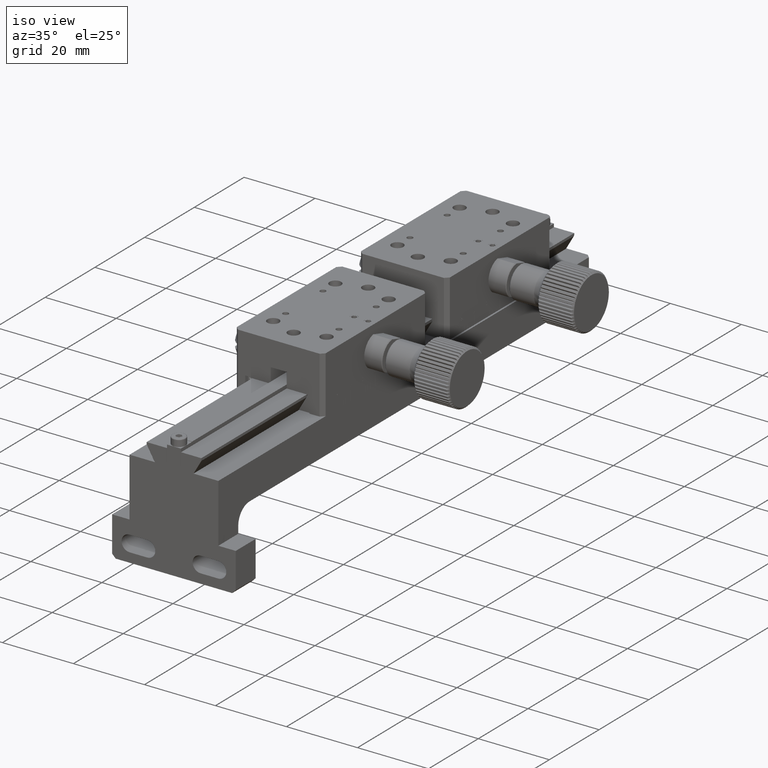
[diagram: clean part render]
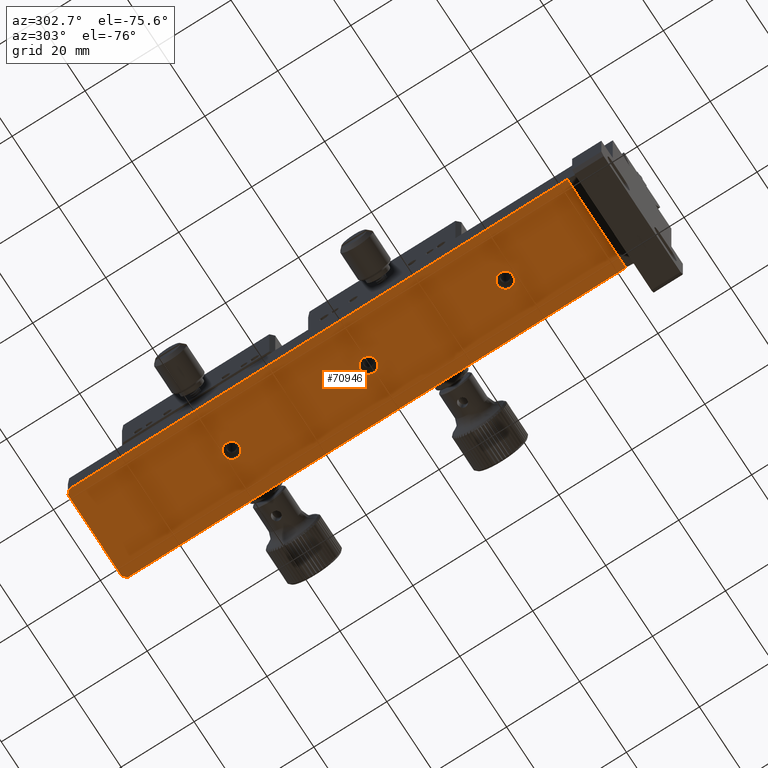
[diagram: tour spotlight — one face highlighted and labeled with its STEP entity id]
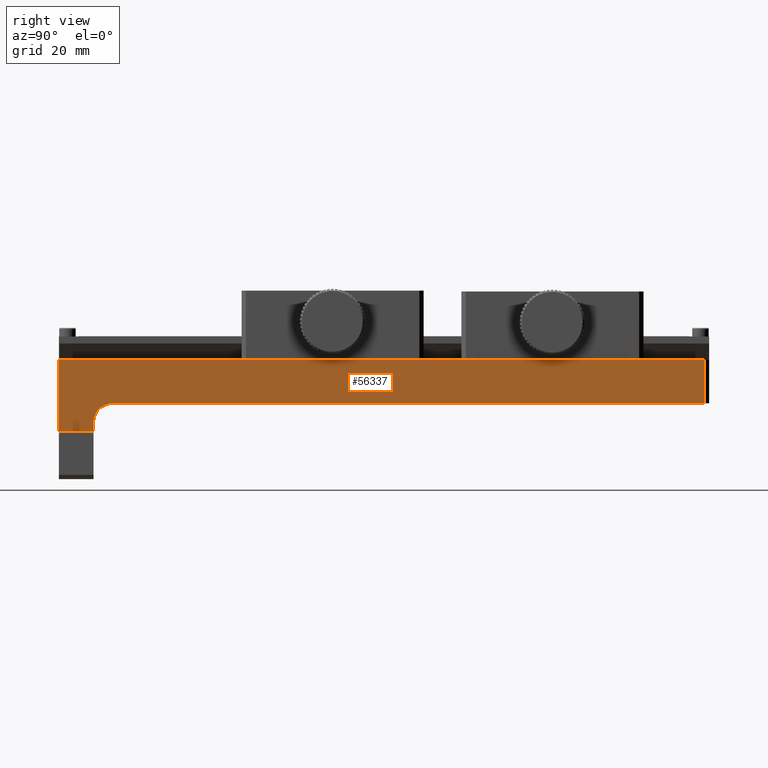
[diagram: tour spotlight — one face highlighted and labeled with its STEP entity id]
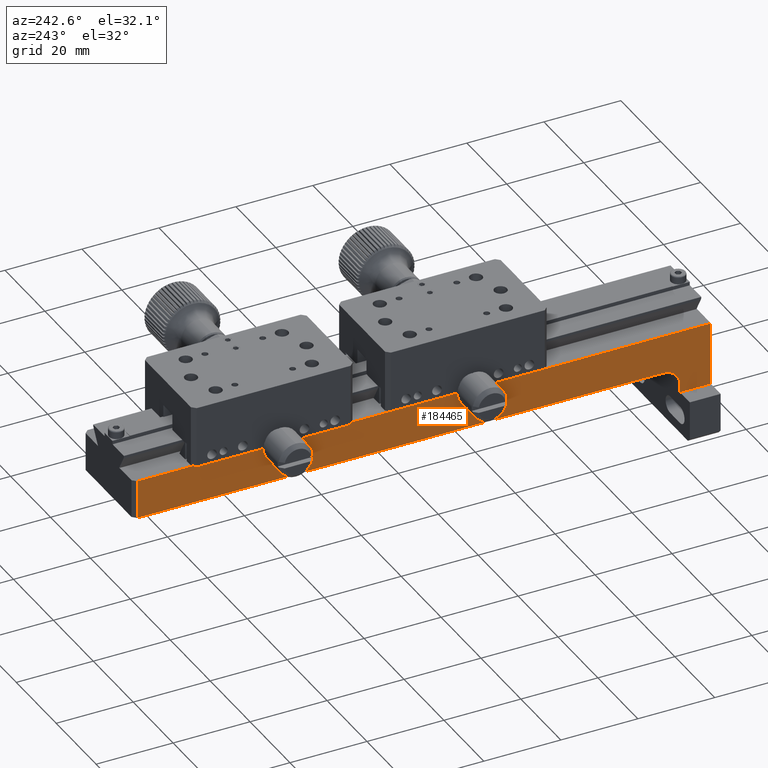
[diagram: tour spotlight — one face highlighted and labeled with its STEP entity id]
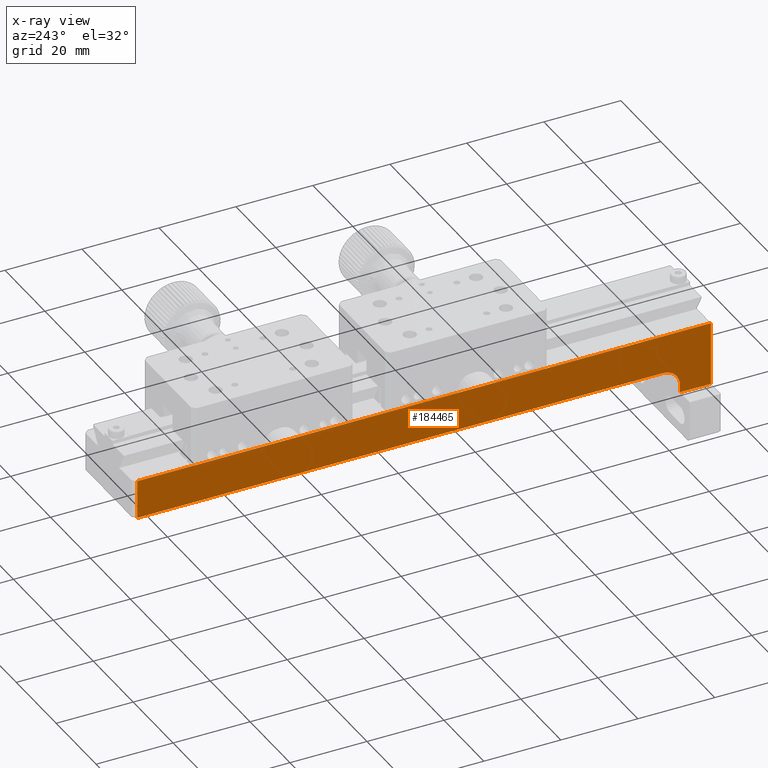
[diagram: x-ray of the same camera — body ghosted, this tour face saturated]
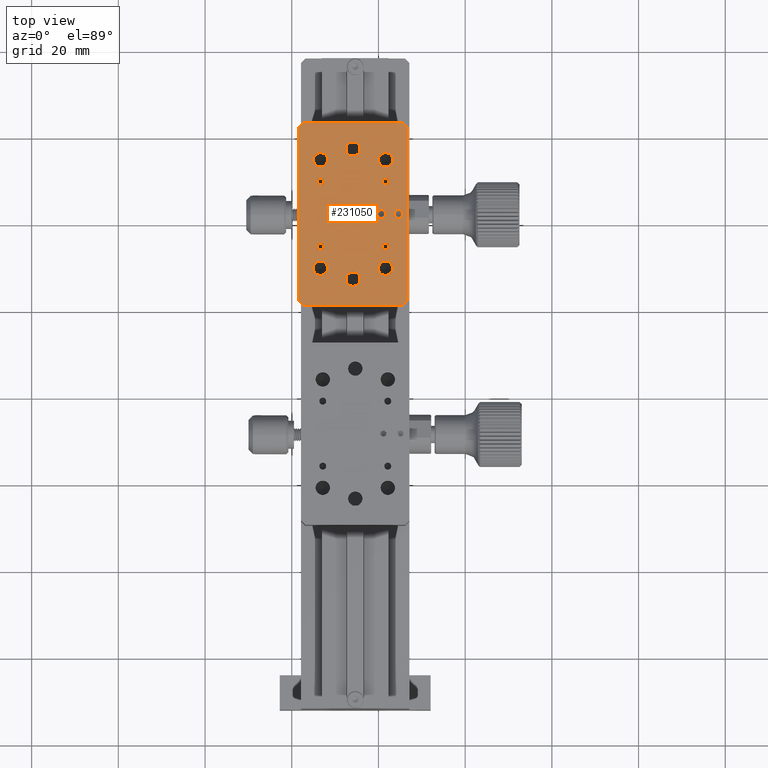
[diagram: tour spotlight — one face highlighted and labeled with its STEP entity id]
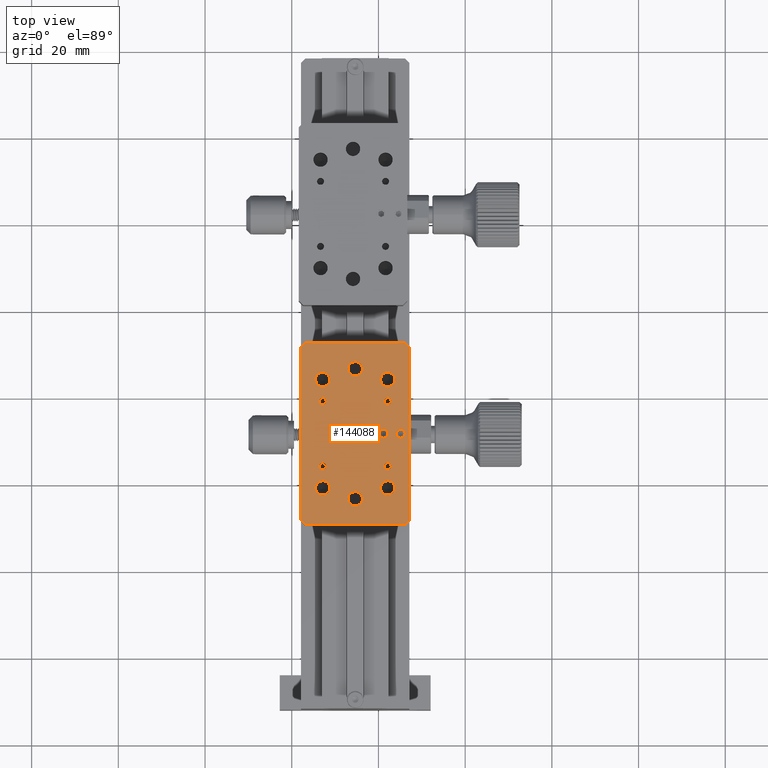
[diagram: tour spotlight — one face highlighted and labeled with its STEP entity id]
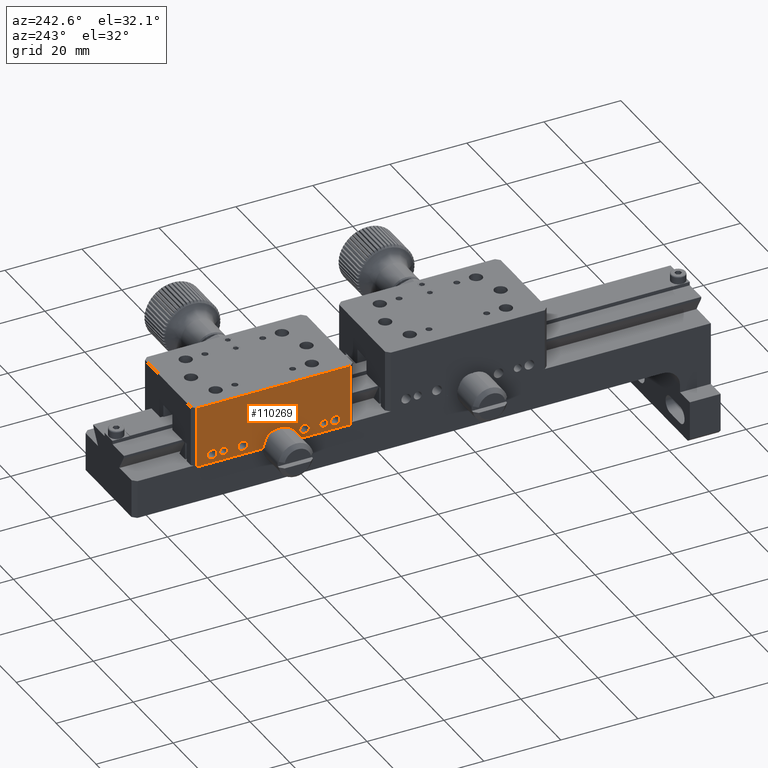
[diagram: tour spotlight — one face highlighted and labeled with its STEP entity id]
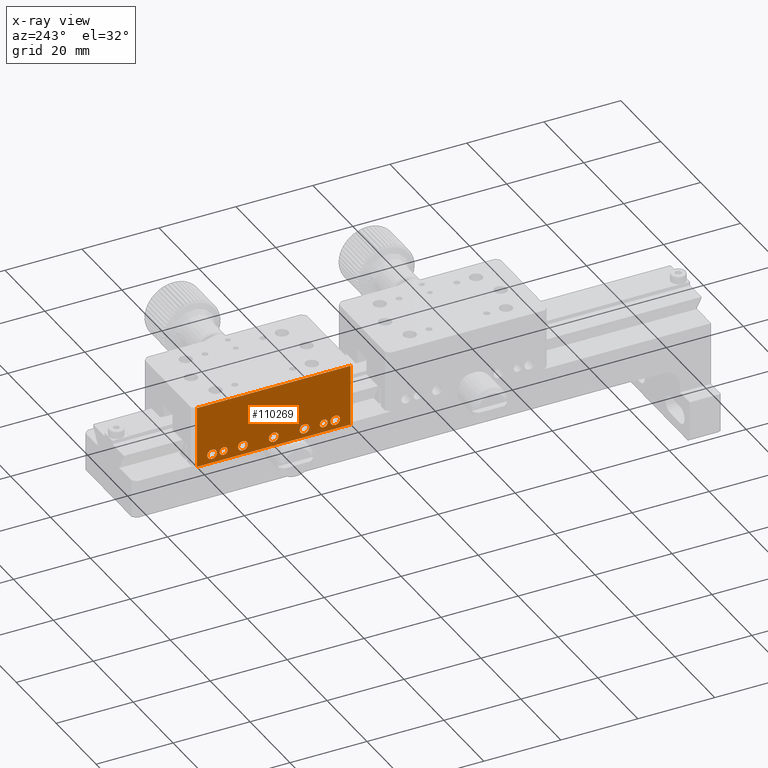
[diagram: x-ray of the same camera — body ghosted, this tour face saturated]
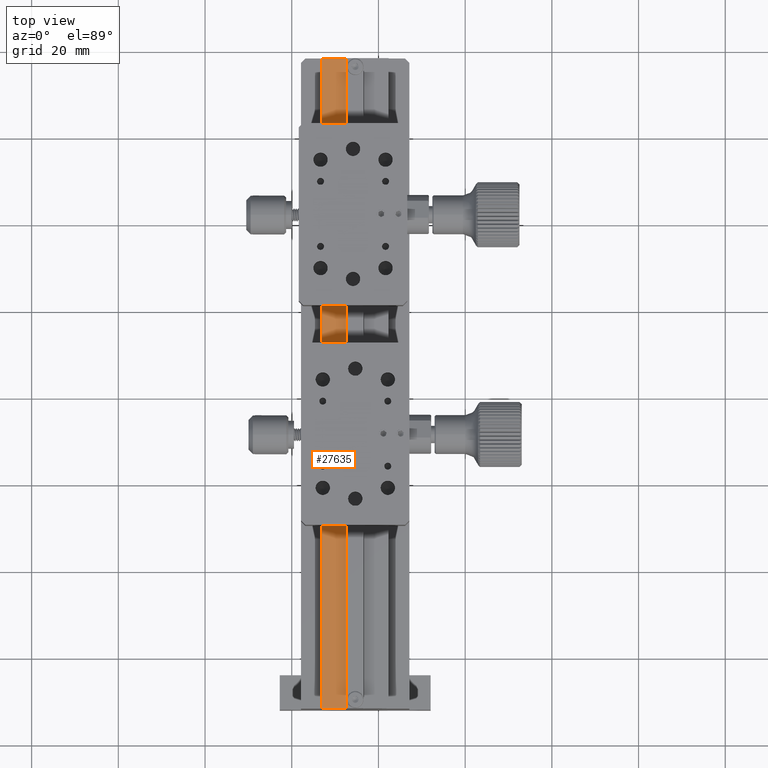
[diagram: tour spotlight — one face highlighted and labeled with its STEP entity id]
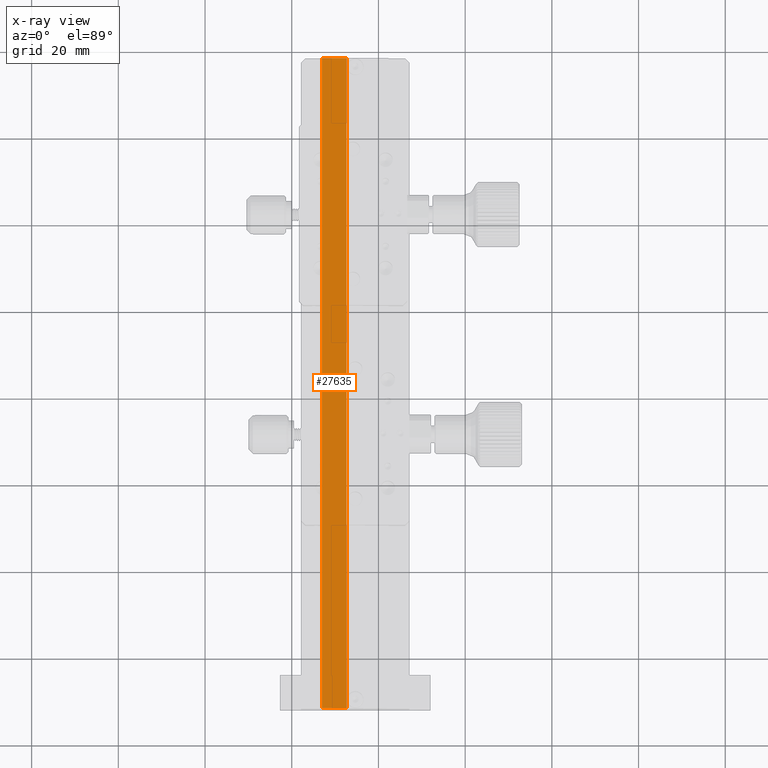
[diagram: x-ray of the same camera — body ghosted, this tour face saturated]
A machine part: a face-by-face anatomy tour. The part has 1708 B-rep faces; the first image is the clean iso view, then the 7 largest visible faces are spotlighted one at a time (largest first), each with its STEP entity span.

Face 1 — auxiliary view, entity #70946. In plain terms, the highlighted planar face has unit normal (0, -0, 1).
Definition (entity closure, byte-faithful):
#1094 = CARTESIAN_POINT ( 'NONE',  ( -25.35755063790384867, 42.72759562841540770, -4.454158828615731203 ) ) ;
#1745 = LINE ( 'NONE', #21543, #119079 ) ;
#2734 = DIRECTION ( 'NONE',  ( 0.000000000000000000, 1.290957005378090032E-14, -1.000000000000000000 ) ) ;
#6159 = CARTESIAN_POINT ( 'NONE',  ( -13.85755063790385044, 78.07759562841538070, -4.454158828615328858 ) ) ;
#6957 = AXIS2_PLACEMENT_3D ( 'NONE', #95536, #40677, #184305 ) ;
#8588 = LINE ( 'NONE', #79761, #175813 ) ;
#14115 = EDGE_CURVE ( 'NONE', #155776, #50118, #163890, .T. ) ;
#14590 = VERTEX_POINT ( 'NONE', #24903 ) ;
#15309 = VECTOR ( 'NONE', #68494, 1000.000000000000114 ) ;
#18827 = AXIS2_PLACEMENT_3D ( 'NONE', #71555, #54018, #142789 ) ;
#20216 = DIRECTION ( 'NONE',  ( 0.000000000000000000, 1.000000000000000000, 1.290957005378089558E-14 ) ) ;
#21543 = CARTESIAN_POINT ( 'NONE',  ( -37.85755063790385577, 78.07759562841538070, -4.454158828615328858 ) ) ;
#21724 = CARTESIAN_POINT ( 'NONE',  ( -36.85755063790385577, 78.07759562841538070, -4.454158828615383925 ) ) ;
#24903 = CARTESIAN_POINT ( 'NONE',  ( -37.85755063790385577, -59.42240437158460509, -4.454158828616772148 ) ) ;
#28225 = DIRECTION ( 'NONE',  ( 0.7071067811865474617, -0.7071067811865474617, 0.000000000000000000 ) ) ;
#34880 = CARTESIAN_POINT ( 'NONE',  ( -37.85755063790385577, 77.07759562841538070, -4.454158828615370602 ) ) ;
#39095 = EDGE_CURVE ( 'NONE', #191752, #191752, #93508, .T. ) ;
#39673 = EDGE_CURVE ( 'NONE', #155776, #168256, #183605, .T. ) ;
#40482 = EDGE_LOOP ( 'NONE', ( #218561 ) ) ;
#40677 = DIRECTION ( 'NONE',  ( 0.000000000000000000, 1.290957005378098078E-14, -1.000000000000000000 ) ) ;
#43669 = FACE_BOUND ( 'NONE', #78958, .T. ) ;
#45247 = CARTESIAN_POINT ( 'NONE',  ( -36.85755063790385577, 78.07759562841538070, -4.454158828615425669 ) ) ;
#48542 = CARTESIAN_POINT ( 'NONE',  ( -12.85755063790385044, 78.07759562841538070, -4.454158828615328858 ) ) ;
#50118 = VERTEX_POINT ( 'NONE', #21724 ) ;
#52443 = VERTEX_POINT ( 'NONE', #1094 ) ;
#53613 = EDGE_CURVE ( 'NONE', #229284, #50118, #187720, .T. ) ;
#54018 = DIRECTION ( 'NONE',  ( 0.000000000000000000, 1.290957005378090032E-14, -1.000000000000000000 ) ) ;
#55003 = CARTESIAN_POINT ( 'NONE',  ( -12.85755063790385044, -59.42240437158460509, -4.454158828616772148 ) ) ;
#55029 = CARTESIAN_POINT ( 'NONE',  ( -25.35755063790384867, -32.27240437158460651, -4.454158828616522570 ) ) ;
#55967 = EDGE_CURVE ( 'NONE', #14590, #193519, #8588, .T. ) ;
#57706 = DIRECTION ( 'NONE',  ( 1.224646799147351975E-16, -1.047444401652940164E-14, 1.000000000000000000 ) ) ;
#58602 = EDGE_CURVE ( 'NONE', #107582, #107582, #160980, .T. ) ;
#60030 = DIRECTION ( 'NONE',  ( 0.000000000000000000, -1.000000000000000000, -1.047444401652940164E-14 ) ) ;
#64509 = CARTESIAN_POINT ( 'NONE',  ( -25.35755063790384867, 5.227595628415390827, -4.454158828616120225 ) ) ;
#67779 = AXIS2_PLACEMENT_3D ( 'NONE', #182508, #2734, #20216 ) ;
#68494 = DIRECTION ( 'NONE',  ( 0.7071067811865474617, 0.7071067811865474617, 0.000000000000000000 ) ) ;
#70946 = ADVANCED_FACE ( 'NONE', ( #112582, #43669, #81021, #114896 ), #132423, .F. ) ;
#71555 = CARTESIAN_POINT ( 'NONE',  ( -25.35755063790384867, 3.077595628415391360, -4.454158828616147758 ) ) ;
#71704 = CARTESIAN_POINT ( 'NONE',  ( -12.85755063790385044, 77.07759562841538070, -4.454158828615328858 ) ) ;
#73610 = EDGE_LOOP ( 'NONE', ( #134820, #75894, #186404, #222163, #212216, #139127 ) ) ;
#74084 = DIRECTION ( 'NONE',  ( 0.000000000000000000, -1.000000000000000000, -1.047444401652940164E-14 ) ) ;
#75128 = CARTESIAN_POINT ( 'NONE',  ( -37.85755063790385577, 78.07759562841538070, -4.454158828615328858 ) ) ;
#75894 = ORIENTED_EDGE ( 'NONE', *, *, #14115, .F. ) ;
#76293 = DIRECTION ( 'NONE',  ( -1.000000000000000000, -1.282749433769086531E-30, 1.224646799147351975E-16 ) ) ;
#78958 = EDGE_LOOP ( 'NONE', ( #182472 ) ) ;
#79761 = CARTESIAN_POINT ( 'NONE',  ( -37.85755063790385577, -59.42240437158460509, -4.454158828616772148 ) ) ;
#81021 = FACE_BOUND ( 'NONE', #215203, .T. ) ;
#93198 = CARTESIAN_POINT ( 'NONE',  ( -13.85755063790385044, 78.07759562841538070, -4.454158828615328858 ) ) ;
#93508 = CIRCLE ( 'NONE', #18827, 2.149999999999999023 ) ;
#95536 = CARTESIAN_POINT ( 'NONE',  ( -25.35755063790384867, 40.57759562841539491, -4.454158828615758736 ) ) ;
#107582 = VERTEX_POINT ( 'NONE', #55029 ) ;
#109603 = VECTOR ( 'NONE', #76293, 1000.000000000000000 ) ;
#111226 = CIRCLE ( 'NONE', #6957, 2.150000000000012790 ) ;
#112582 = FACE_OUTER_BOUND ( 'NONE', #73610, .T. ) ;
#114896 = FACE_BOUND ( 'NONE', #40482, .T. ) ;
#117064 = AXIS2_PLACEMENT_3D ( 'NONE', #202487, #57706, #60030 ) ;
#119079 = VECTOR ( 'NONE', #74084, 1000.000000000000000 ) ;
#126861 = EDGE_CURVE ( 'NONE', #193519, #168256, #155991, .T. ) ;
#132423 = PLANE ( 'NONE',  #117064 ) ;
#134820 = ORIENTED_EDGE ( 'NONE', *, *, #53613, .T. ) ;
#139127 = ORIENTED_EDGE ( 'NONE', *, *, #194081, .F. ) ;
#142789 = DIRECTION ( 'NONE',  ( 0.000000000000000000, 1.000000000000000000, 1.290957005378089558E-14 ) ) ;
#150982 = DIRECTION ( 'NONE',  ( 1.000000000000000000, 1.282749433769086531E-30, -1.224646799147351975E-16 ) ) ;
#152535 = DIRECTION ( 'NONE',  ( -0.000000000000000000, 1.000000000000000000, 1.047444401652940164E-14 ) ) ;
#155776 = VERTEX_POINT ( 'NONE', #93198 ) ;
#155991 = LINE ( 'NONE', #48542, #198799 ) ;
#160980 = CIRCLE ( 'NONE', #67779, 2.149999999999999023 ) ;
#163890 = LINE ( 'NONE', #75128, #109603 ) ;
#168256 = VERTEX_POINT ( 'NONE', #71704 ) ;
#175813 = VECTOR ( 'NONE', #150982, 1000.000000000000000 ) ;
#182472 = ORIENTED_EDGE ( 'NONE', *, *, #39095, .F. ) ;
#182508 = CARTESIAN_POINT ( 'NONE',  ( -25.35755063790384867, -34.42240437158460509, -4.454158828616550103 ) ) ;
#183605 = LINE ( 'NONE', #6159, #227704 ) ;
#184305 = DIRECTION ( 'NONE',  ( 0.000000000000000000, 1.000000000000000000, 1.290957005378081354E-14 ) ) ;
#185826 = ORIENTED_EDGE ( 'NONE', *, *, #58602, .F. ) ;
#186404 = ORIENTED_EDGE ( 'NONE', *, *, #39673, .T. ) ;
#187720 = LINE ( 'NONE', #45247, #15309 ) ;
#189173 = EDGE_CURVE ( 'NONE', #52443, #52443, #111226, .T. ) ;
#191752 = VERTEX_POINT ( 'NONE', #64509 ) ;
#193519 = VERTEX_POINT ( 'NONE', #55003 ) ;
#194081 = EDGE_CURVE ( 'NONE', #229284, #14590, #1745, .T. ) ;
#198799 = VECTOR ( 'NONE', #152535, 1000.000000000000000 ) ;
#202487 = CARTESIAN_POINT ( 'NONE',  ( -37.85755063790385577, 78.07759562841538070, -4.454158828615328858 ) ) ;
#212216 = ORIENTED_EDGE ( 'NONE', *, *, #55967, .F. ) ;
#215203 = EDGE_LOOP ( 'NONE', ( #185826 ) ) ;
#218561 = ORIENTED_EDGE ( 'NONE', *, *, #189173, .F. ) ;
#222163 = ORIENTED_EDGE ( 'NONE', *, *, #126861, .F. ) ;
#227704 = VECTOR ( 'NONE', #28225, 1000.000000000000114 ) ;
#229284 = VERTEX_POINT ( 'NONE', #34880 ) ;

Face 2 — right view, entity #56337. In plain terms, the highlighted planar face has unit normal (-1, -0, 0).
Definition (entity closure, byte-faithful):
#4110 = EDGE_CURVE ( 'NONE', #186056, #168256, #214937, .T. ) ;
#10133 = DIRECTION ( 'NONE',  ( 3.469446951953615175E-16, 0.000000000000000000, 1.000000000000000000 ) ) ;
#14625 = CARTESIAN_POINT ( 'NONE',  ( -12.85755063790385044, -71.92240437158459088, 5.545841171383083967 ) ) ;
#20628 = VERTEX_POINT ( 'NONE', #39625 ) ;
#24020 = LINE ( 'NONE', #186317, #214945 ) ;
#28534 = VECTOR ( 'NONE', #190225, 1000.000000000000000 ) ;
#29260 = VECTOR ( 'NONE', #10133, 1000.000000000000000 ) ;
#31211 = AXIS2_PLACEMENT_3D ( 'NONE', #112846, #132684, #209652 ) ;
#39625 = CARTESIAN_POINT ( 'NONE',  ( -12.85755063790385044, -63.92240437158455535, -10.95415882861682633 ) ) ;
#40355 = CARTESIAN_POINT ( 'NONE',  ( -12.85755063790385044, 78.07759562841538070, 5.545841171383083967 ) ) ;
#48542 = CARTESIAN_POINT ( 'NONE',  ( -12.85755063790385044, 78.07759562841538070, -4.454158828615328858 ) ) ;
#49058 = CARTESIAN_POINT ( 'NONE',  ( -12.85755063790385044, -63.92240437158455535, -8.954158828616824550 ) ) ;
#55003 = CARTESIAN_POINT ( 'NONE',  ( -12.85755063790385044, -59.42240437158460509, -4.454158828616772148 ) ) ;
#56337 = ADVANCED_FACE ( 'NONE', ( #85491 ), #156732, .F. ) ;
#56778 = VECTOR ( 'NONE', #183379, 1000.000000000000000 ) ;
#66662 = ORIENTED_EDGE ( 'NONE', *, *, #92657, .F. ) ;
#69981 = EDGE_CURVE ( 'NONE', #193519, #131315, #87204, .T. ) ;
#71704 = CARTESIAN_POINT ( 'NONE',  ( -12.85755063790385044, 77.07759562841538070, -4.454158828615328858 ) ) ;
#73833 = VECTOR ( 'NONE', #111567, 1000.000000000000000 ) ;
#74960 = AXIS2_PLACEMENT_3D ( 'NONE', #104144, #175384, #229103 ) ;
#79889 = ORIENTED_EDGE ( 'NONE', *, *, #126861, .T. ) ;
#85491 = FACE_OUTER_BOUND ( 'NONE', #119547, .T. ) ;
#86056 = EDGE_CURVE ( 'NONE', #20628, #203898, #227562, .T. ) ;
#87204 = CIRCLE ( 'NONE', #31211, 4.500000000000003553 ) ;
#92657 = EDGE_CURVE ( 'NONE', #216603, #186056, #165301, .T. ) ;
#95237 = DIRECTION ( 'NONE',  ( -3.469446951953615175E-16, -0.000000000000000000, -1.000000000000000000 ) ) ;
#104144 = CARTESIAN_POINT ( 'NONE',  ( -12.85755063790385044, 78.07759562841538070, -4.454158828615328858 ) ) ;
#106786 = ORIENTED_EDGE ( 'NONE', *, *, #86056, .F. ) ;
#111567 = DIRECTION ( 'NONE',  ( -3.634052786655670085E-30, 1.000000000000000000, 1.260815336390105615E-45 ) ) ;
#112846 = CARTESIAN_POINT ( 'NONE',  ( -12.85755063790385044, -59.42240437158455535, -8.954158828616824550 ) ) ;
#119547 = EDGE_LOOP ( 'NONE', ( #140231, #66662, #124582, #106786, #199119, #209565, #79889 ) ) ;
#124582 = ORIENTED_EDGE ( 'NONE', *, *, #181464, .F. ) ;
#126861 = EDGE_CURVE ( 'NONE', #193519, #168256, #155991, .T. ) ;
#131315 = VERTEX_POINT ( 'NONE', #49058 ) ;
#132684 = DIRECTION ( 'NONE',  ( 1.000000000000000000, -3.911410985983294585E-32, -4.221912464982364608E-46 ) ) ;
#140231 = ORIENTED_EDGE ( 'NONE', *, *, #4110, .F. ) ;
#147174 = CARTESIAN_POINT ( 'NONE',  ( -12.85755063790385044, 77.07759562841538070, -4.454158828615328858 ) ) ;
#151387 = LINE ( 'NONE', #167776, #29260 ) ;
#152535 = DIRECTION ( 'NONE',  ( -0.000000000000000000, 1.000000000000000000, 1.047444401652940164E-14 ) ) ;
#155991 = LINE ( 'NONE', #48542, #198799 ) ;
#156714 = CARTESIAN_POINT ( 'NONE',  ( -12.85755063790385044, 77.07759562841538070, 5.545841171383611545 ) ) ;
#156732 = PLANE ( 'NONE',  #74960 ) ;
#165301 = LINE ( 'NONE', #40355, #73833 ) ;
#167776 = CARTESIAN_POINT ( 'NONE',  ( -12.85755063790385044, -71.92240437158453403, -4.454158828615328858 ) ) ;
#168256 = VERTEX_POINT ( 'NONE', #71704 ) ;
#172118 = EDGE_CURVE ( 'NONE', #131315, #20628, #24020, .T. ) ;
#175384 = DIRECTION ( 'NONE',  ( -1.000000000000000000, -3.634052786655670085E-30, 3.469446951953615175E-16 ) ) ;
#181464 = EDGE_CURVE ( 'NONE', #203898, #216603, #151387, .T. ) ;
#183379 = DIRECTION ( 'NONE',  ( -3.469446951953615175E-16, -0.000000000000000000, -1.000000000000000000 ) ) ;
#186056 = VERTEX_POINT ( 'NONE', #156714 ) ;
#186317 = CARTESIAN_POINT ( 'NONE',  ( -12.85755063790385044, -63.92240437158455535, -4.454158828615328858 ) ) ;
#187654 = CARTESIAN_POINT ( 'NONE',  ( -12.85755063790385044, -71.92240437158453403, -10.95415882861686185 ) ) ;
#190225 = DIRECTION ( 'NONE',  ( 3.634052786655670085E-30, -1.000000000000000000, -1.260815336390105615E-45 ) ) ;
#193519 = VERTEX_POINT ( 'NONE', #55003 ) ;
#198799 = VECTOR ( 'NONE', #152535, 1000.000000000000000 ) ;
#199119 = ORIENTED_EDGE ( 'NONE', *, *, #172118, .F. ) ;
#203898 = VERTEX_POINT ( 'NONE', #187654 ) ;
#209565 = ORIENTED_EDGE ( 'NONE', *, *, #69981, .F. ) ;
#209652 = DIRECTION ( 'NONE',  ( 0.000000000000000000, -1.000000000000000000, 7.709882115452470278E-16 ) ) ;
#214937 = LINE ( 'NONE', #147174, #56778 ) ;
#214945 = VECTOR ( 'NONE', #95237, 1000.000000000000000 ) ;
#216603 = VERTEX_POINT ( 'NONE', #14625 ) ;
#227562 = LINE ( 'NONE', #228704, #28534 ) ;
#228704 = CARTESIAN_POINT ( 'NONE',  ( -12.85755063790385044, 78.07759562841538070, -10.95415882861682633 ) ) ;
#229103 = DIRECTION ( 'NONE',  ( 3.469446951953615175E-16, 0.000000000000000000, 1.000000000000000000 ) ) ;

Face 3 — auxiliary view, entity #184465. An x-ray twin of the same camera follows (body ghosted, this face saturated) — the face is partly hidden behind the body. In plain terms, the highlighted planar face has unit normal (1, 0, 0).
Definition (entity closure, byte-faithful):
#1745 = LINE ( 'NONE', #21543, #119079 ) ;
#5432 = VERTEX_POINT ( 'NONE', #40624 ) ;
#6136 = ORIENTED_EDGE ( 'NONE', *, *, #41025, .F. ) ;
#9301 = VERTEX_POINT ( 'NONE', #214081 ) ;
#14590 = VERTEX_POINT ( 'NONE', #24903 ) ;
#18353 = EDGE_LOOP ( 'NONE', ( #78279, #124987, #136092, #80513, #6136, #75476, #209620 ) ) ;
#21543 = CARTESIAN_POINT ( 'NONE',  ( -37.85755063790385577, 78.07759562841538070, -4.454158828615328858 ) ) ;
#24903 = CARTESIAN_POINT ( 'NONE',  ( -37.85755063790385577, -59.42240437158460509, -4.454158828616772148 ) ) ;
#25508 = LINE ( 'NONE', #96711, #80883 ) ;
#27823 = DIRECTION ( 'NONE',  ( 0.000000000000000000, -1.000000000000000000, 0.000000000000000000 ) ) ;
#32355 = VECTOR ( 'NONE', #114704, 1000.000000000000000 ) ;
#34058 = DIRECTION ( 'NONE',  ( 0.000000000000000000, -1.000000000000000000, -0.000000000000000000 ) ) ;
#34880 = CARTESIAN_POINT ( 'NONE',  ( -37.85755063790385577, 77.07759562841538070, -4.454158828615370602 ) ) ;
#40624 = CARTESIAN_POINT ( 'NONE',  ( -37.85755063790385577, -71.92240437158470456, 5.545841171383902868 ) ) ;
#40639 = CARTESIAN_POINT ( 'NONE',  ( -37.85755063790385577, 78.07759562841538070, 5.545841171384680024 ) ) ;
#40862 = LINE ( 'NONE', #221814, #163502 ) ;
#41025 = EDGE_CURVE ( 'NONE', #52613, #142497, #40862, .T. ) ;
#43483 = LINE ( 'NONE', #115848, #32355 ) ;
#49778 = CIRCLE ( 'NONE', #79646, 4.500000000000003553 ) ;
#51578 = LINE ( 'NONE', #194035, #102021 ) ;
#52613 = VERTEX_POINT ( 'NONE', #149225 ) ;
#53062 = EDGE_CURVE ( 'NONE', #5432, #52613, #191149, .T. ) ;
#73557 = AXIS2_PLACEMENT_3D ( 'NONE', #40639, #131702, #145740 ) ;
#74084 = DIRECTION ( 'NONE',  ( 0.000000000000000000, -1.000000000000000000, -1.047444401652940164E-14 ) ) ;
#75476 = ORIENTED_EDGE ( 'NONE', *, *, #53062, .F. ) ;
#76914 = CARTESIAN_POINT ( 'NONE',  ( -37.85755063790385577, -59.42240437158455535, -8.954158828616824550 ) ) ;
#78279 = ORIENTED_EDGE ( 'NONE', *, *, #86490, .F. ) ;
#79646 = AXIS2_PLACEMENT_3D ( 'NONE', #76914, #99024, #27823 ) ;
#80513 = ORIENTED_EDGE ( 'NONE', *, *, #87872, .F. ) ;
#80883 = VECTOR ( 'NONE', #167955, 1000.000000000000000 ) ;
#81447 = DIRECTION ( 'NONE',  ( 0.000000000000000000, 0.000000000000000000, -1.000000000000000000 ) ) ;
#86143 = VECTOR ( 'NONE', #81447, 1000.000000000000000 ) ;
#86490 = EDGE_CURVE ( 'NONE', #229284, #9301, #43483, .T. ) ;
#87872 = EDGE_CURVE ( 'NONE', #142497, #210993, #25508, .T. ) ;
#93415 = DIRECTION ( 'NONE',  ( -0.000000000000000000, 1.000000000000000000, 0.000000000000000000 ) ) ;
#96711 = CARTESIAN_POINT ( 'NONE',  ( -37.85755063790385577, -63.92240437158449851, 5.545841171384680024 ) ) ;
#99024 = DIRECTION ( 'NONE',  ( -1.000000000000000000, 3.911410985983294585E-32, 4.221912464982364608E-46 ) ) ;
#102021 = VECTOR ( 'NONE', #34058, 1000.000000000000000 ) ;
#111407 = CARTESIAN_POINT ( 'NONE',  ( -37.85755063790385577, -63.92240437158451272, -10.95415882861688850 ) ) ;
#114704 = DIRECTION ( 'NONE',  ( -0.000000000000000000, -0.000000000000000000, 1.000000000000000000 ) ) ;
#115848 = CARTESIAN_POINT ( 'NONE',  ( -37.85755063790385577, 77.07759562841538070, 5.545841171384680024 ) ) ;
#119079 = VECTOR ( 'NONE', #74084, 1000.000000000000000 ) ;
#124987 = ORIENTED_EDGE ( 'NONE', *, *, #194081, .T. ) ;
#129380 = FACE_OUTER_BOUND ( 'NONE', #18353, .T. ) ;
#130044 = EDGE_CURVE ( 'NONE', #210993, #14590, #49778, .T. ) ;
#131702 = DIRECTION ( 'NONE',  ( 1.000000000000000000, 0.000000000000000000, 0.000000000000000000 ) ) ;
#136092 = ORIENTED_EDGE ( 'NONE', *, *, #130044, .F. ) ;
#137442 = CARTESIAN_POINT ( 'NONE',  ( -37.85755063790385577, -71.92240437158470456, 5.545841171384680024 ) ) ;
#142053 = CARTESIAN_POINT ( 'NONE',  ( -37.85755063790385577, -63.92240437158452693, -8.954158828616824550 ) ) ;
#142497 = VERTEX_POINT ( 'NONE', #111407 ) ;
#145740 = DIRECTION ( 'NONE',  ( 0.000000000000000000, 0.000000000000000000, -1.000000000000000000 ) ) ;
#149225 = CARTESIAN_POINT ( 'NONE',  ( -37.85755063790385577, -71.92240437158464772, -10.95415882861692403 ) ) ;
#163502 = VECTOR ( 'NONE', #93415, 1000.000000000000000 ) ;
#166030 = EDGE_CURVE ( 'NONE', #9301, #5432, #51578, .T. ) ;
#167955 = DIRECTION ( 'NONE',  ( -0.000000000000000000, -0.000000000000000000, 1.000000000000000000 ) ) ;
#184266 = PLANE ( 'NONE',  #73557 ) ;
#184465 = ADVANCED_FACE ( 'NONE', ( #129380 ), #184266, .F. ) ;
#191149 = LINE ( 'NONE', #137442, #86143 ) ;
#194035 = CARTESIAN_POINT ( 'NONE',  ( -37.85755063790385577, 78.07759562841538070, 5.545841171384680024 ) ) ;
#194081 = EDGE_CURVE ( 'NONE', #229284, #14590, #1745, .T. ) ;
#209620 = ORIENTED_EDGE ( 'NONE', *, *, #166030, .F. ) ;
#210993 = VERTEX_POINT ( 'NONE', #142053 ) ;
#214081 = CARTESIAN_POINT ( 'NONE',  ( -37.85755063790385577, 77.07759562841538070, 5.545841171384680024 ) ) ;
#221814 = CARTESIAN_POINT ( 'NONE',  ( -37.85755063790385577, 78.07759562841538070, -10.95415882861692403 ) ) ;
#229284 = VERTEX_POINT ( 'NONE', #34880 ) ;

Face 4 — top view, entity #231050. In plain terms, the highlighted planar face has unit normal (-0, 0, -1).
Definition (entity closure, byte-faithful):
#554 = CARTESIAN_POINT ( 'NONE',  ( -13.37302069169164831, 62.92256834123966058, 21.34584117147010573 ) ) ;
#1376 = VERTEX_POINT ( 'NONE', #109878 ) ;
#6048 = EDGE_CURVE ( 'NONE', #19410, #19410, #19458, .T. ) ;
#6441 = CARTESIAN_POINT ( 'NONE',  ( -13.37302069169163410, 61.92256834123964637, 21.34584117146996718 ) ) ;
#6592 = AXIS2_PLACEMENT_3D ( 'NONE', #114166, #59310, #184276 ) ;
#7575 = CARTESIAN_POINT ( 'NONE',  ( -33.37302069169165009, 29.42256834123956111, 21.34584117147111826 ) ) ;
#8019 = CARTESIAN_POINT ( 'NONE',  ( -31.72302069169165151, 54.42256834123953979, 21.34584117147131366 ) ) ;
#8581 = VERTEX_POINT ( 'NONE', #133463 ) ;
#11787 = ORIENTED_EDGE ( 'NONE', *, *, #6048, .F. ) ;
#11852 = AXIS2_PLACEMENT_3D ( 'NONE', #166546, #96453, #147860 ) ;
#12236 = VECTOR ( 'NONE', #105619, 1000.000000000000000 ) ;
#14595 = EDGE_CURVE ( 'NONE', #8581, #8581, #46286, .T. ) ;
#15414 = CARTESIAN_POINT ( 'NONE',  ( -31.72302069169165151, 29.42256834123956111, 21.34584117147100812 ) ) ;
#15756 = CARTESIAN_POINT ( 'NONE',  ( -38.37302069169187746, 61.92256834123944742, 21.34584117147180038 ) ) ;
#16649 = DIRECTION ( 'NONE',  ( 0.7071067811865500152, 0.7071067811865450192, -0.000000000000000000 ) ) ;
#18540 = ORIENTED_EDGE ( 'NONE', *, *, #196505, .F. ) ;
#19410 = VERTEX_POINT ( 'NONE', #216710 ) ;
#19458 = CIRCLE ( 'NONE', #179796, 0.7999999999999951594 ) ;
#20525 = CARTESIAN_POINT ( 'NONE',  ( -13.37302069169157903, 62.92256834123976006, 21.34584117146973270 ) ) ;
#21352 = ORIENTED_EDGE ( 'NONE', *, *, #215543, .F. ) ;
#21559 = EDGE_LOOP ( 'NONE', ( #229740 ) ) ;
#21609 = ORIENTED_EDGE ( 'NONE', *, *, #26751, .F. ) ;
#21721 = FACE_BOUND ( 'NONE', #164257, .T. ) ;
#24446 = EDGE_CURVE ( 'NONE', #139191, #139191, #148052, .T. ) ;
#25042 = LINE ( 'NONE', #185022, #101820 ) ;
#26071 = DIRECTION ( 'NONE',  ( 1.000000000000000000, 0.000000000000000000, -6.505213034913065732E-14 ) ) ;
#26161 = VERTEX_POINT ( 'NONE', #154289 ) ;
#26751 = EDGE_CURVE ( 'NONE', #67945, #67945, #170571, .T. ) ;
#26779 = EDGE_CURVE ( 'NONE', #120510, #120510, #58691, .T. ) ;
#26922 = VERTEX_POINT ( 'NONE', #151847 ) ;
#31935 = ORIENTED_EDGE ( 'NONE', *, *, #44472, .F. ) ;
#32152 = CARTESIAN_POINT ( 'NONE',  ( -25.87302069169164653, 26.92256834123954334, 21.34584117147062088 ) ) ;
#33817 = ORIENTED_EDGE ( 'NONE', *, *, #127711, .F. ) ;
#34403 = LINE ( 'NONE', #554, #12236 ) ;
#36290 = EDGE_CURVE ( 'NONE', #61938, #217058, #114466, .T. ) ;
#36357 = AXIS2_PLACEMENT_3D ( 'NONE', #213731, #53737, #87630 ) ;
#36455 = ORIENTED_EDGE ( 'NONE', *, *, #124770, .T. ) ;
#38070 = FACE_BOUND ( 'NONE', #167170, .T. ) ;
#38382 = VERTEX_POINT ( 'NONE', #6441 ) ;
#39310 = ORIENTED_EDGE ( 'NONE', *, *, #166239, .F. ) ;
#40384 = CARTESIAN_POINT ( 'NONE',  ( -13.37302069169164831, 62.92256834123966058, 21.34584117147010573 ) ) ;
#40825 = VECTOR ( 'NONE', #185737, 1000.000000000000000 ) ;
#42667 = LINE ( 'NONE', #20525, #207060 ) ;
#44472 = EDGE_CURVE ( 'NONE', #219316, #74280, #99487, .T. ) ;
#44709 = FACE_BOUND ( 'NONE', #193148, .T. ) ;
#45575 = VERTEX_POINT ( 'NONE', #190339 ) ;
#45875 = AXIS2_PLACEMENT_3D ( 'NONE', #111937, #93271, #57058 ) ;
#46220 = ORIENTED_EDGE ( 'NONE', *, *, #229487, .F. ) ;
#46286 = CIRCLE ( 'NONE', #176804, 0.7999999999999951594 ) ;
#51440 = DIRECTION ( 'NONE',  ( 6.637663070813848966E-14, -1.353930517835560089E-14, 1.000000000000000000 ) ) ;
#52208 = CIRCLE ( 'NONE', #67192, 1.649999999999998579 ) ;
#52784 = EDGE_LOOP ( 'NONE', ( #149638 ) ) ;
#53516 = AXIS2_PLACEMENT_3D ( 'NONE', #32152, #101088, #190988 ) ;
#53737 = DIRECTION ( 'NONE',  ( 6.637663070813848966E-14, -8.410780489584531102E-15, 1.000000000000000000 ) ) ;
#54296 = AXIS2_PLACEMENT_3D ( 'NONE', #143004, #103367, #229457 ) ;
#55962 = CARTESIAN_POINT ( 'NONE',  ( -14.37302069169164831, 20.92256834123953979, 21.34584117147000981 ) ) ;
#56336 = ORIENTED_EDGE ( 'NONE', *, *, #216822, .F. ) ;
#56518 = EDGE_CURVE ( 'NONE', #61938, #74280, #194046, .T. ) ;
#57058 = DIRECTION ( 'NONE',  ( 1.000000000000000000, 0.000000000000000000, -6.505213034913065732E-14 ) ) ;
#57882 = DIRECTION ( 'NONE',  ( -1.000000000000000000, 0.000000000000000000, 6.637663070813848966E-14 ) ) ;
#58691 = CIRCLE ( 'NONE', #36357, 1.649999999999998579 ) ;
#59310 = DIRECTION ( 'NONE',  ( 6.637663070813848966E-14, -1.734723475976814983E-14, 1.000000000000000000 ) ) ;
#61938 = VERTEX_POINT ( 'NONE', #224763 ) ;
#64851 = EDGE_LOOP ( 'NONE', ( #89570 ) ) ;
#67192 = AXIS2_PLACEMENT_3D ( 'NONE', #78810, #96324, #145421 ) ;
#67945 = VERTEX_POINT ( 'NONE', #155579 ) ;
#69096 = DIRECTION ( 'NONE',  ( 0.7071067811865500152, -0.7071067811865450192, -0.000000000000000000 ) ) ;
#69968 = CARTESIAN_POINT ( 'NONE',  ( -32.57302069169165293, 34.42256834123955400, 21.34584117147106852 ) ) ;
#69996 = EDGE_CURVE ( 'NONE', #1376, #1376, #135735, .T. ) ;
#71730 = EDGE_LOOP ( 'NONE', ( #21609 ) ) ;
#74280 = VERTEX_POINT ( 'NONE', #106461 ) ;
#76427 = DIRECTION ( 'NONE',  ( 1.000000000000000000, 0.000000000000000000, -6.728624391667621095E-14 ) ) ;
#77139 = CARTESIAN_POINT ( 'NONE',  ( -38.37302069169165719, 62.92256834123966058, 21.34584117147177196 ) ) ;
#77236 = EDGE_CURVE ( 'NONE', #38382, #26161, #42667, .T. ) ;
#77969 = CARTESIAN_POINT ( 'NONE',  ( -18.37302069169165364, 34.42256834123955400, 21.34584117147023008 ) ) ;
#78810 = CARTESIAN_POINT ( 'NONE',  ( -25.87302069169164653, 56.92256834123953979, 21.34584117147094062 ) ) ;
#79753 = FACE_BOUND ( 'NONE', #100907, .T. ) ;
#86851 = CIRCLE ( 'NONE', #45875, 0.7999999999999951594 ) ;
#87630 = DIRECTION ( 'NONE',  ( 1.000000000000000000, 0.000000000000000000, -6.728624391667621095E-14 ) ) ;
#88673 = VECTOR ( 'NONE', #98661, 1000.000000000000000 ) ;
#88927 = CARTESIAN_POINT ( 'NONE',  ( -38.37302069169165719, 21.92256834123954690, 21.34584117147140958 ) ) ;
#89570 = ORIENTED_EDGE ( 'NONE', *, *, #26779, .F. ) ;
#91730 = DIRECTION ( 'NONE',  ( 1.665334536937594788E-16, -1.000000000000000000, -1.107198514961017480E-29 ) ) ;
#93143 = EDGE_CURVE ( 'NONE', #217058, #95607, #220165, .T. ) ;
#93271 = DIRECTION ( 'NONE',  ( 6.637663070813848966E-14, -1.734723475976814983E-14, 1.000000000000000000 ) ) ;
#95607 = VERTEX_POINT ( 'NONE', #101091 ) ;
#96324 = DIRECTION ( 'NONE',  ( 6.637663070813848966E-14, -8.410780489584531102E-15, 1.000000000000000000 ) ) ;
#96453 = DIRECTION ( 'NONE',  ( 6.637663070813848966E-14, -8.410780489584531102E-15, 1.000000000000000000 ) ) ;
#96702 = VERTEX_POINT ( 'NONE', #221649 ) ;
#98407 = FACE_BOUND ( 'NONE', #71730, .T. ) ;
#98661 = DIRECTION ( 'NONE',  ( 0.7071067811865450192, 0.7071067811865500152, -0.000000000000000000 ) ) ;
#98804 = EDGE_LOOP ( 'NONE', ( #18540 ) ) ;
#99487 = LINE ( 'NONE', #102929, #118998 ) ;
#100907 = EDGE_LOOP ( 'NONE', ( #46220 ) ) ;
#101088 = DIRECTION ( 'NONE',  ( 6.637663070813848966E-14, -8.410780489584561079E-15, 1.000000000000000000 ) ) ;
#101091 = CARTESIAN_POINT ( 'NONE',  ( -37.37302069169190588, 62.92256834123966058, 21.34584117147177196 ) ) ;
#101820 = VECTOR ( 'NONE', #202515, 1000.000000000000000 ) ;
#102929 = CARTESIAN_POINT ( 'NONE',  ( -13.37302069169164831, 20.92256834123954690, 21.34584117146967586 ) ) ;
#103367 = DIRECTION ( 'NONE',  ( 6.637663070813848966E-14, -8.410780489584531102E-15, 1.000000000000000000 ) ) ;
#105375 = CARTESIAN_POINT ( 'NONE',  ( -13.37302069169203556, 21.92256834123913123, 21.34584117146981441 ) ) ;
#105619 = DIRECTION ( 'NONE',  ( 1.000000000000000000, -0.000000000000000000, -6.637663070813848966E-14 ) ) ;
#106461 = CARTESIAN_POINT ( 'NONE',  ( -37.37302069169190588, 20.92256834123955400, 21.34584117147135629 ) ) ;
#109291 = FACE_BOUND ( 'NONE', #230522, .T. ) ;
#109878 = CARTESIAN_POINT ( 'NONE',  ( -24.22302069169164795, 26.92256834123954334, 21.34584117147050719 ) ) ;
#110434 = FACE_BOUND ( 'NONE', #52784, .T. ) ;
#111937 = CARTESIAN_POINT ( 'NONE',  ( -33.37302069169165009, 34.42256834123955400, 21.34584117147111826 ) ) ;
#114166 = CARTESIAN_POINT ( 'NONE',  ( -18.37302069169165364, 49.42256834123955400, 21.34584117147034377 ) ) ;
#114466 = LINE ( 'NONE', #77139, #40825 ) ;
#115032 = CARTESIAN_POINT ( 'NONE',  ( -37.37302069169165719, 62.92256834123966058, 21.34584117147181459 ) ) ;
#118998 = VECTOR ( 'NONE', #134545, 1000.000000000000000 ) ;
#120510 = VERTEX_POINT ( 'NONE', #190612 ) ;
#121709 = EDGE_CURVE ( 'NONE', #26922, #26922, #213159, .T. ) ;
#123807 = CARTESIAN_POINT ( 'NONE',  ( -15.37302069169165009, 41.92256834123954690, 21.34584117147002402 ) ) ;
#124770 = EDGE_CURVE ( 'NONE', #219316, #26161, #157962, .T. ) ;
#127399 = DIRECTION ( 'NONE',  ( 1.000000000000000000, 0.000000000000000000, -6.769652589177796343E-14 ) ) ;
#127711 = EDGE_CURVE ( 'NONE', #180652, #38382, #25042, .T. ) ;
#127962 = FACE_BOUND ( 'NONE', #191225, .T. ) ;
#133463 = CARTESIAN_POINT ( 'NONE',  ( -32.57302069169165293, 49.42256834123955400, 21.34584117147127458 ) ) ;
#134545 = DIRECTION ( 'NONE',  ( -1.000000000000000000, 0.000000000000000000, 6.637663070813848966E-14 ) ) ;
#134621 = DIRECTION ( 'NONE',  ( 6.637663070813848966E-14, -1.734723475976814983E-14, 1.000000000000000000 ) ) ;
#134678 = VECTOR ( 'NONE', #69096, 1000.000000000000000 ) ;
#135301 = CARTESIAN_POINT ( 'NONE',  ( -14.37302069169188456, 62.92256834123983822, 21.34584117147043969 ) ) ;
#135735 = CIRCLE ( 'NONE', #53516, 1.649999999999998579 ) ;
#139191 = VERTEX_POINT ( 'NONE', #15414 ) ;
#142358 = VERTEX_POINT ( 'NONE', #229945 ) ;
#143004 = CARTESIAN_POINT ( 'NONE',  ( -33.37302069169165009, 54.42256834123953979, 21.34584117147142379 ) ) ;
#144459 = ORIENTED_EDGE ( 'NONE', *, *, #24446, .F. ) ;
#145421 = DIRECTION ( 'NONE',  ( 1.000000000000000000, 0.000000000000000000, -6.728624391667621095E-14 ) ) ;
#147860 = DIRECTION ( 'NONE',  ( 1.000000000000000000, 0.000000000000000000, -6.728624391667621095E-14 ) ) ;
#148052 = CIRCLE ( 'NONE', #166736, 1.649999999999998579 ) ;
#149211 = DIRECTION ( 'NONE',  ( 1.000000000000000000, 0.000000000000000000, -6.505213034913065732E-14 ) ) ;
#149638 = ORIENTED_EDGE ( 'NONE', *, *, #121709, .F. ) ;
#149970 = DIRECTION ( 'NONE',  ( 6.637663070813848966E-14, -8.410780489584531102E-15, 1.000000000000000000 ) ) ;
#150985 = CARTESIAN_POINT ( 'NONE',  ( -33.37302069169165009, 49.42256834123955400, 21.34584117147132787 ) ) ;
#151847 = CARTESIAN_POINT ( 'NONE',  ( -16.72302069169165506, 29.42256834123956111, 21.34584117147000981 ) ) ;
#153985 = ORIENTED_EDGE ( 'NONE', *, *, #36290, .F. ) ;
#154289 = CARTESIAN_POINT ( 'NONE',  ( -13.37302069169157903, 21.92256834123958242, 21.34584117146977178 ) ) ;
#155560 = CIRCLE ( 'NONE', #6592, 0.7999999999999951594 ) ;
#155579 = CARTESIAN_POINT ( 'NONE',  ( -14.34802069169165151, 41.92256834123954690, 21.34584117146995297 ) ) ;
#157962 = LINE ( 'NONE', #105375, #183691 ) ;
#158729 = VERTEX_POINT ( 'NONE', #69968 ) ;
#161846 = FACE_BOUND ( 'NONE', #64851, .T. ) ;
#162999 = FACE_BOUND ( 'NONE', #98804, .T. ) ;
#163678 = ORIENTED_EDGE ( 'NONE', *, *, #93143, .F. ) ;
#164171 = FACE_BOUND ( 'NONE', #166023, .T. ) ;
#164257 = EDGE_LOOP ( 'NONE', ( #210701 ) ) ;
#166023 = EDGE_LOOP ( 'NONE', ( #187744 ) ) ;
#166239 = EDGE_CURVE ( 'NONE', #45575, #45575, #172883, .T. ) ;
#166546 = CARTESIAN_POINT ( 'NONE',  ( -18.37302069169165364, 29.42256834123956111, 21.34584117147011995 ) ) ;
#166736 = AXIS2_PLACEMENT_3D ( 'NONE', #7575, #149970, #76427 ) ;
#167170 = EDGE_LOOP ( 'NONE', ( #11787 ) ) ;
#170571 = CIRCLE ( 'NONE', #178025, 1.024999999999998135 ) ;
#172883 = CIRCLE ( 'NONE', #206542, 1.024999999999998135 ) ;
#176804 = AXIS2_PLACEMENT_3D ( 'NONE', #150985, #134621, #26071 ) ;
#178025 = AXIS2_PLACEMENT_3D ( 'NONE', #123807, #51440, #227812 ) ;
#179796 = AXIS2_PLACEMENT_3D ( 'NONE', #77969, #223889, #149211 ) ;
#180652 = VERTEX_POINT ( 'NONE', #135301 ) ;
#183160 = VERTEX_POINT ( 'NONE', #8019 ) ;
#183691 = VECTOR ( 'NONE', #16649, 1000.000000000000000 ) ;
#184276 = DIRECTION ( 'NONE',  ( 1.000000000000000000, 0.000000000000000000, -6.505213034913065732E-14 ) ) ;
#185022 = CARTESIAN_POINT ( 'NONE',  ( -14.37302069169164831, 62.92256834123966058, 21.34584117147021587 ) ) ;
#185737 = DIRECTION ( 'NONE',  ( 6.816589893102533607E-28, 1.000000000000000000, 1.026956297778270115E-14 ) ) ;
#187744 = ORIENTED_EDGE ( 'NONE', *, *, #220314, .F. ) ;
#188634 = ORIENTED_EDGE ( 'NONE', *, *, #77236, .F. ) ;
#189559 = EDGE_LOOP ( 'NONE', ( #228839, #31935, #36455, #188634, #33817, #56336, #163678, #153985 ) ) ;
#190339 = CARTESIAN_POINT ( 'NONE',  ( -18.34802069169162664, 41.92256834123954690, 21.34584117147027271 ) ) ;
#190612 = CARTESIAN_POINT ( 'NONE',  ( -16.72302069169165506, 54.42256834123953979, 21.34584117147031535 ) ) ;
#190988 = DIRECTION ( 'NONE',  ( 1.000000000000000000, 0.000000000000000000, -6.728624391667621095E-14 ) ) ;
#191225 = EDGE_LOOP ( 'NONE', ( #144459 ) ) ;
#193148 = EDGE_LOOP ( 'NONE', ( #21352 ) ) ;
#194046 = LINE ( 'NONE', #88927, #134678 ) ;
#196505 = EDGE_CURVE ( 'NONE', #142358, #142358, #52208, .T. ) ;
#196517 = AXIS2_PLACEMENT_3D ( 'NONE', #40384, #223363, #57882 ) ;
#198044 = FACE_OUTER_BOUND ( 'NONE', #189559, .T. ) ;
#202515 = DIRECTION ( 'NONE',  ( 0.7071067811865450192, -0.7071067811865500152, -0.000000000000000000 ) ) ;
#203244 = DIRECTION ( 'NONE',  ( 6.637663070813848966E-14, -1.353930517835560089E-14, 1.000000000000000000 ) ) ;
#206542 = AXIS2_PLACEMENT_3D ( 'NONE', #218455, #203244, #127399 ) ;
#207060 = VECTOR ( 'NONE', #91730, 1000.000000000000000 ) ;
#210701 = ORIENTED_EDGE ( 'NONE', *, *, #69996, .F. ) ;
#213159 = CIRCLE ( 'NONE', #11852, 1.649999999999998579 ) ;
#213731 = CARTESIAN_POINT ( 'NONE',  ( -18.37302069169165364, 54.42256834123953979, 21.34584117147042548 ) ) ;
#215543 = EDGE_CURVE ( 'NONE', #158729, #158729, #86851, .T. ) ;
#216710 = CARTESIAN_POINT ( 'NONE',  ( -17.57302069169165648, 34.42256834123955400, 21.34584117147018034 ) ) ;
#216822 = EDGE_CURVE ( 'NONE', #95607, #180652, #34403, .T. ) ;
#217058 = VERTEX_POINT ( 'NONE', #15756 ) ;
#217867 = FACE_BOUND ( 'NONE', #21559, .T. ) ;
#218455 = CARTESIAN_POINT ( 'NONE',  ( -19.37302069169162522, 41.92256834123954690, 21.34584117147034377 ) ) ;
#219316 = VERTEX_POINT ( 'NONE', #55962 ) ;
#220165 = LINE ( 'NONE', #115032, #88673 ) ;
#220314 = EDGE_CURVE ( 'NONE', #183160, #183160, #226384, .T. ) ;
#221649 = CARTESIAN_POINT ( 'NONE',  ( -17.57302069169165648, 49.42256834123955400, 21.34584117147029048 ) ) ;
#222208 = PLANE ( 'NONE',  #196517 ) ;
#223363 = DIRECTION ( 'NONE',  ( -6.637663070813848966E-14, 1.026956297778270115E-14, -1.000000000000000000 ) ) ;
#223889 = DIRECTION ( 'NONE',  ( 6.637663070813848966E-14, -1.734723475976814983E-14, 1.000000000000000000 ) ) ;
#224763 = CARTESIAN_POINT ( 'NONE',  ( -38.37302069169196272, 21.92256834123990217, 21.34584117147149485 ) ) ;
#226384 = CIRCLE ( 'NONE', #54296, 1.649999999999998579 ) ;
#227812 = DIRECTION ( 'NONE',  ( 1.000000000000000000, 0.000000000000000000, -6.769652589177796343E-14 ) ) ;
#228839 = ORIENTED_EDGE ( 'NONE', *, *, #56518, .T. ) ;
#229457 = DIRECTION ( 'NONE',  ( 1.000000000000000000, 0.000000000000000000, -6.728624391667621095E-14 ) ) ;
#229487 = EDGE_CURVE ( 'NONE', #96702, #96702, #155560, .T. ) ;
#229740 = ORIENTED_EDGE ( 'NONE', *, *, #14595, .F. ) ;
#229945 = CARTESIAN_POINT ( 'NONE',  ( -24.22302069169164795, 56.92256834123953979, 21.34584117147082694 ) ) ;
#230522 = EDGE_LOOP ( 'NONE', ( #39310 ) ) ;
#231050 = ADVANCED_FACE ( 'NONE', ( #198044, #217867, #79753, #38070, #44709, #98407, #109291, #127962, #164171, #161846, #110434, #21721, #162999 ), #222208, .F. ) ;

Face 5 — top view, entity #144088. In plain terms, the highlighted planar face has unit normal (-0, 0, -1).
Definition (entity closure, byte-faithful):
#3263 = CIRCLE ( 'NONE', #133781, 1.649999999999998579 ) ;
#3990 = EDGE_LOOP ( 'NONE', ( #15925 ) ) ;
#4831 = CARTESIAN_POINT ( 'NONE',  ( -17.85755063789315500, -21.27581508023519774, 21.54584117137499533 ) ) ;
#6932 = ORIENTED_EDGE ( 'NONE', *, *, #80815, .F. ) ;
#7164 = VERTEX_POINT ( 'NONE', #164768 ) ;
#7786 = CIRCLE ( 'NONE', #138228, 1.649999999999998579 ) ;
#8200 = VECTOR ( 'NONE', #86835, 1000.000000000000000 ) ;
#8536 = VERTEX_POINT ( 'NONE', #155803 ) ;
#9667 = ORIENTED_EDGE ( 'NONE', *, *, #199974, .F. ) ;
#12868 = CARTESIAN_POINT ( 'NONE',  ( -16.20755063789315642, -21.27581508023519774, 21.54584117137488164 ) ) ;
#14616 = ORIENTED_EDGE ( 'NONE', *, *, #29951, .F. ) ;
#14677 = ORIENTED_EDGE ( 'NONE', *, *, #37342, .F. ) ;
#15693 = ORIENTED_EDGE ( 'NONE', *, *, #211530, .F. ) ;
#15925 = ORIENTED_EDGE ( 'NONE', *, *, #30982, .F. ) ;
#17795 = ORIENTED_EDGE ( 'NONE', *, *, #96628, .F. ) ;
#19232 = DIRECTION ( 'NONE',  ( 6.637663070813848966E-14, -1.353930517835560089E-14, 1.000000000000000000 ) ) ;
#19754 = DIRECTION ( 'NONE',  ( 6.816589893102533607E-28, 1.000000000000000000, 1.026956297778270115E-14 ) ) ;
#22013 = CARTESIAN_POINT ( 'NONE',  ( -25.35755063789314789, -23.77581508023521195, 21.54584117137549271 ) ) ;
#24077 = EDGE_CURVE ( 'NONE', #30742, #141119, #60056, .T. ) ;
#24749 = EDGE_LOOP ( 'NONE', ( #62593, #68586, #217209, #14677, #227648, #15693, #188075, #190248 ) ) ;
#24860 = AXIS2_PLACEMENT_3D ( 'NONE', #215672, #164269, #39322 ) ;
#25032 = PLANE ( 'NONE',  #129274 ) ;
#25531 = CIRCLE ( 'NONE', #156036, 1.024999999999998135 ) ;
#26857 = CARTESIAN_POINT ( 'NONE',  ( -17.85755063789315500, 3.724184919764783608, 21.54584117137529731 ) ) ;
#27997 = DIRECTION ( 'NONE',  ( 6.637663070813848966E-14, -8.410780489584531102E-15, 1.000000000000000000 ) ) ;
#29951 = EDGE_CURVE ( 'NONE', #119378, #119378, #62338, .T. ) ;
#30044 = DIRECTION ( 'NONE',  ( 1.000000000000000000, 0.000000000000000000, -6.505213034913065732E-14 ) ) ;
#30433 = EDGE_CURVE ( 'NONE', #174237, #174237, #40173, .T. ) ;
#30742 = VERTEX_POINT ( 'NONE', #52166 ) ;
#30982 = EDGE_CURVE ( 'NONE', #50421, #50421, #25531, .T. ) ;
#31823 = LINE ( 'NONE', #139242, #222500 ) ;
#31981 = LINE ( 'NONE', #103206, #8200 ) ;
#35624 = LINE ( 'NONE', #139626, #82017 ) ;
#37342 = EDGE_CURVE ( 'NONE', #141119, #211776, #35624, .T. ) ;
#39322 = DIRECTION ( 'NONE',  ( 1.000000000000000000, 0.000000000000000000, -6.505213034913065732E-14 ) ) ;
#40119 = DIRECTION ( 'NONE',  ( 6.637663070813848966E-14, -8.410780489584531102E-15, 1.000000000000000000 ) ) ;
#40173 = CIRCLE ( 'NONE', #144685, 0.7999999999999951594 ) ;
#41814 = AXIS2_PLACEMENT_3D ( 'NONE', #58250, #76943, #79252 ) ;
#43579 = CARTESIAN_POINT ( 'NONE',  ( -32.85755063789315500, 3.724184919764783608, 21.54584117137629917 ) ) ;
#43685 = FACE_BOUND ( 'NONE', #67722, .T. ) ;
#46993 = CARTESIAN_POINT ( 'NONE',  ( -17.05755063789315784, -16.27581508023520485, 21.54584117137505217 ) ) ;
#49843 = VECTOR ( 'NONE', #185764, 1000.000000000000000 ) ;
#49864 = DIRECTION ( 'NONE',  ( 6.637663070813848966E-14, -1.353930517835560089E-14, 1.000000000000000000 ) ) ;
#50421 = VERTEX_POINT ( 'NONE', #101855 ) ;
#52166 = CARTESIAN_POINT ( 'NONE',  ( -13.85755063789338770, 12.22418491976508292, 21.54584117137531152 ) ) ;
#52635 = VERTEX_POINT ( 'NONE', #60449 ) ;
#52852 = ORIENTED_EDGE ( 'NONE', *, *, #30433, .F. ) ;
#52959 = CIRCLE ( 'NONE', #41814, 1.649999999999998579 ) ;
#53592 = CARTESIAN_POINT ( 'NONE',  ( -16.20755063789315642, 3.724184919764783608, 21.54584117137518717 ) ) ;
#54736 = CARTESIAN_POINT ( 'NONE',  ( -32.05755063789315784, -1.275815080235207066, 21.54584117137614996 ) ) ;
#55362 = EDGE_LOOP ( 'NONE', ( #181786 ) ) ;
#57395 = EDGE_LOOP ( 'NONE', ( #52852 ) ) ;
#58126 = EDGE_CURVE ( 'NONE', #111946, #8536, #31981, .T. ) ;
#58250 = CARTESIAN_POINT ( 'NONE',  ( -25.35755063789314789, 6.224184919764786272, 21.54584117137581245 ) ) ;
#60056 = LINE ( 'NONE', #182707, #92168 ) ;
#60449 = CARTESIAN_POINT ( 'NONE',  ( -13.85755063789315145, -29.77581508023521906, 21.54584117137488164 ) ) ;
#61865 = DIRECTION ( 'NONE',  ( 1.000000000000000000, 0.000000000000000000, -6.728624391667621095E-14 ) ) ;
#62331 = CIRCLE ( 'NONE', #129498, 1.024999999999998135 ) ;
#62338 = CIRCLE ( 'NONE', #178014, 1.649999999999998579 ) ;
#62348 = FACE_BOUND ( 'NONE', #104789, .T. ) ;
#62593 = ORIENTED_EDGE ( 'NONE', *, *, #190296, .T. ) ;
#65299 = CARTESIAN_POINT ( 'NONE',  ( -32.85755063789315500, -21.27581508023519774, 21.54584117137599364 ) ) ;
#67722 = EDGE_LOOP ( 'NONE', ( #9667 ) ) ;
#68509 = CIRCLE ( 'NONE', #165534, 1.649999999999998579 ) ;
#68586 = ORIENTED_EDGE ( 'NONE', *, *, #145417, .F. ) ;
#71529 = EDGE_LOOP ( 'NONE', ( #6932 ) ) ;
#71593 = CARTESIAN_POINT ( 'NONE',  ( -32.85755063789315500, -1.275815080235207066, 21.54584117137619970 ) ) ;
#71595 = EDGE_LOOP ( 'NONE', ( #167222 ) ) ;
#72302 = LINE ( 'NONE', #143533, #87117 ) ;
#73109 = DIRECTION ( 'NONE',  ( 1.000000000000000000, -0.000000000000000000, -6.637663070813848966E-14 ) ) ;
#73412 = VERTEX_POINT ( 'NONE', #54736 ) ;
#75363 = CARTESIAN_POINT ( 'NONE',  ( -36.85755063789341079, -29.77581508023520485, 21.54584117137622812 ) ) ;
#76007 = CARTESIAN_POINT ( 'NONE',  ( -12.85755063789353869, -28.77581508023562762, 21.54584117137468979 ) ) ;
#76943 = DIRECTION ( 'NONE',  ( 6.637663070813848966E-14, -8.410780489584531102E-15, 1.000000000000000000 ) ) ;
#77574 = FACE_BOUND ( 'NONE', #117256, .T. ) ;
#77761 = DIRECTION ( 'NONE',  ( 0.7071067811865500152, -0.7071067811865450192, -0.000000000000000000 ) ) ;
#78729 = DIRECTION ( 'NONE',  ( -1.000000000000000000, 0.000000000000000000, 6.637663070813848966E-14 ) ) ;
#79252 = DIRECTION ( 'NONE',  ( 1.000000000000000000, 0.000000000000000000, -6.728624391667621095E-14 ) ) ;
#79885 = FACE_BOUND ( 'NONE', #161602, .T. ) ;
#80320 = DIRECTION ( 'NONE',  ( 6.637663070813848966E-14, -1.734723475976814983E-14, 1.000000000000000000 ) ) ;
#80815 = EDGE_CURVE ( 'NONE', #90062, #90062, #155057, .T. ) ;
#81767 = VERTEX_POINT ( 'NONE', #152994 ) ;
#82017 = VECTOR ( 'NONE', #122084, 1000.000000000000000 ) ;
#86835 = DIRECTION ( 'NONE',  ( 0.7071067811865450192, 0.7071067811865500152, -0.000000000000000000 ) ) ;
#87117 = VECTOR ( 'NONE', #19754, 1000.000000000000000 ) ;
#90062 = VERTEX_POINT ( 'NONE', #160162 ) ;
#90170 = VECTOR ( 'NONE', #73109, 1000.000000000000000 ) ;
#90929 = CARTESIAN_POINT ( 'NONE',  ( -17.05755063789315784, -1.275815080235207066, 21.54584117137516230 ) ) ;
#91408 = DIRECTION ( 'NONE',  ( 1.000000000000000000, 0.000000000000000000, -6.505213034913065732E-14 ) ) ;
#92168 = VECTOR ( 'NONE', #96251, 1000.000000000000000 ) ;
#95035 = EDGE_CURVE ( 'NONE', #148414, #148414, #129333, .T. ) ;
#96243 = FACE_OUTER_BOUND ( 'NONE', #24749, .T. ) ;
#96251 = DIRECTION ( 'NONE',  ( 0.7071067811865450192, -0.7071067811865500152, -0.000000000000000000 ) ) ;
#96628 = EDGE_CURVE ( 'NONE', #115644, #115644, #62331, .T. ) ;
#97287 = DIRECTION ( 'NONE',  ( 1.000000000000000000, 0.000000000000000000, -6.728624391667621095E-14 ) ) ;
#98542 = DIRECTION ( 'NONE',  ( -6.637663070813848966E-14, 1.026956297778270115E-14, -1.000000000000000000 ) ) ;
#100389 = CARTESIAN_POINT ( 'NONE',  ( -37.85755063789338237, 11.22418491976469390, 21.54584117137667221 ) ) ;
#101855 = CARTESIAN_POINT ( 'NONE',  ( -17.83255063789312800, -8.775815080235213728, 21.54584117137514454 ) ) ;
#103206 = CARTESIAN_POINT ( 'NONE',  ( -36.85755063789315500, 12.22418491976490174, 21.54584117137668642 ) ) ;
#103582 = DIRECTION ( 'NONE',  ( 1.000000000000000000, 0.000000000000000000, -6.769652589177796343E-14 ) ) ;
#104789 = EDGE_LOOP ( 'NONE', ( #147857 ) ) ;
#105172 = CIRCLE ( 'NONE', #198366, 0.7999999999999951594 ) ;
#107951 = ORIENTED_EDGE ( 'NONE', *, *, #122444, .F. ) ;
#108528 = AXIS2_PLACEMENT_3D ( 'NONE', #210979, #138604, #30044 ) ;
#108919 = DIRECTION ( 'NONE',  ( 6.637663070813848966E-14, -1.734723475976814983E-14, 1.000000000000000000 ) ) ;
#109173 = VERTEX_POINT ( 'NONE', #75363 ) ;
#111946 = VERTEX_POINT ( 'NONE', #100389 ) ;
#114492 = LINE ( 'NONE', #76007, #49843 ) ;
#115644 = VERTEX_POINT ( 'NONE', #128558 ) ;
#116054 = FACE_BOUND ( 'NONE', #129199, .T. ) ;
#117256 = EDGE_LOOP ( 'NONE', ( #143115 ) ) ;
#119378 = VERTEX_POINT ( 'NONE', #226808 ) ;
#121354 = AXIS2_PLACEMENT_3D ( 'NONE', #65299, #172736, #186824 ) ;
#121534 = ORIENTED_EDGE ( 'NONE', *, *, #166234, .F. ) ;
#122084 = DIRECTION ( 'NONE',  ( 1.665334536937594788E-16, -1.000000000000000000, -1.107198514961017480E-29 ) ) ;
#122444 = EDGE_CURVE ( 'NONE', #7164, #7164, #52959, .T. ) ;
#124826 = VERTEX_POINT ( 'NONE', #53592 ) ;
#128558 = CARTESIAN_POINT ( 'NONE',  ( -13.83255063789315464, -8.775815080235213728, 21.54584117137482835 ) ) ;
#129199 = EDGE_LOOP ( 'NONE', ( #107951 ) ) ;
#129274 = AXIS2_PLACEMENT_3D ( 'NONE', #167488, #98542, #78729 ) ;
#129333 = CIRCLE ( 'NONE', #24860, 0.7999999999999951594 ) ;
#129489 = EDGE_CURVE ( 'NONE', #189647, #111946, #72302, .T. ) ;
#129498 = AXIS2_PLACEMENT_3D ( 'NONE', #179203, #19232, #144162 ) ;
#131471 = LINE ( 'NONE', #182883, #137571 ) ;
#132439 = FACE_BOUND ( 'NONE', #224264, .T. ) ;
#132876 = DIRECTION ( 'NONE',  ( 1.000000000000000000, 0.000000000000000000, -6.505213034913065732E-14 ) ) ;
#133781 = AXIS2_PLACEMENT_3D ( 'NONE', #43579, #40119, #97287 ) ;
#137571 = VECTOR ( 'NONE', #77761, 1000.000000000000000 ) ;
#138228 = AXIS2_PLACEMENT_3D ( 'NONE', #26857, #27997, #61865 ) ;
#138604 = DIRECTION ( 'NONE',  ( 6.637663070813848966E-14, -1.734723475976814983E-14, 1.000000000000000000 ) ) ;
#139242 = CARTESIAN_POINT ( 'NONE',  ( -12.85755063789314967, -29.77581508023521195, 21.54584117137455124 ) ) ;
#139626 = CARTESIAN_POINT ( 'NONE',  ( -12.85755063789308039, 12.22418491976499944, 21.54584117137460453 ) ) ;
#141119 = VERTEX_POINT ( 'NONE', #194677 ) ;
#143115 = ORIENTED_EDGE ( 'NONE', *, *, #182894, .F. ) ;
#143533 = CARTESIAN_POINT ( 'NONE',  ( -37.85755063789316210, 12.22418491976490174, 21.54584117137664379 ) ) ;
#144088 = ADVANCED_FACE ( 'NONE', ( #96243, #62348, #224640, #188459, #151105, #132439, #153411, #223499, #77574, #43685, #79885, #221190, #116054 ), #25032, .F. ) ;
#144162 = DIRECTION ( 'NONE',  ( 1.000000000000000000, 0.000000000000000000, -6.769652589177796343E-14 ) ) ;
#144685 = AXIS2_PLACEMENT_3D ( 'NONE', #155006, #80320, #132876 ) ;
#145417 = EDGE_CURVE ( 'NONE', #52635, #109173, #31823, .T. ) ;
#146938 = DIRECTION ( 'NONE',  ( 6.637663070813848966E-14, -8.410780489584561079E-15, 1.000000000000000000 ) ) ;
#147813 = CARTESIAN_POINT ( 'NONE',  ( -12.85755063789314967, 12.22418491976490174, 21.54584117137498112 ) ) ;
#147857 = ORIENTED_EDGE ( 'NONE', *, *, #212823, .F. ) ;
#148414 = VERTEX_POINT ( 'NONE', #204405 ) ;
#151105 = FACE_BOUND ( 'NONE', #55362, .T. ) ;
#152994 = CARTESIAN_POINT ( 'NONE',  ( -31.20755063789315642, 3.724184919764783608, 21.54584117137618549 ) ) ;
#153411 = FACE_BOUND ( 'NONE', #3990, .T. ) ;
#153864 = CARTESIAN_POINT ( 'NONE',  ( -37.85755063789346053, -28.77581508023485668, 21.54584117137636667 ) ) ;
#155006 = CARTESIAN_POINT ( 'NONE',  ( -17.85755063789315500, -16.27581508023520485, 21.54584117137510546 ) ) ;
#155057 = CIRCLE ( 'NONE', #121354, 1.649999999999998579 ) ;
#155803 = CARTESIAN_POINT ( 'NONE',  ( -36.85755063789341079, 12.22418491976490174, 21.54584117137664379 ) ) ;
#156036 = AXIS2_PLACEMENT_3D ( 'NONE', #156165, #49864, #103582 ) ;
#156165 = CARTESIAN_POINT ( 'NONE',  ( -18.85755063789312658, -8.775815080235213728, 21.54584117137521559 ) ) ;
#160162 = CARTESIAN_POINT ( 'NONE',  ( -31.20755063789315642, -21.27581508023519774, 21.54584117137588350 ) ) ;
#161602 = EDGE_LOOP ( 'NONE', ( #121534 ) ) ;
#163007 = CARTESIAN_POINT ( 'NONE',  ( -12.85755063789308039, -28.77581508023517642, 21.54584117137464716 ) ) ;
#164269 = DIRECTION ( 'NONE',  ( 6.637663070813848966E-14, -1.734723475976814983E-14, 1.000000000000000000 ) ) ;
#164768 = CARTESIAN_POINT ( 'NONE',  ( -23.70755063789314931, 6.224184919764786272, 21.54584117137570232 ) ) ;
#165534 = AXIS2_PLACEMENT_3D ( 'NONE', #4831, #184600, #200942 ) ;
#166234 = EDGE_CURVE ( 'NONE', #205558, #205558, #68509, .T. ) ;
#166424 = EDGE_CURVE ( 'NONE', #52635, #211776, #114492, .T. ) ;
#167222 = ORIENTED_EDGE ( 'NONE', *, *, #201328, .F. ) ;
#167488 = CARTESIAN_POINT ( 'NONE',  ( -12.85755063789314967, 12.22418491976490174, 21.54584117137498112 ) ) ;
#171925 = CIRCLE ( 'NONE', #108528, 0.7999999999999951594 ) ;
#172736 = DIRECTION ( 'NONE',  ( 6.637663070813848966E-14, -8.410780489584531102E-15, 1.000000000000000000 ) ) ;
#174237 = VERTEX_POINT ( 'NONE', #46993 ) ;
#178014 = AXIS2_PLACEMENT_3D ( 'NONE', #22013, #146938, #183144 ) ;
#179203 = CARTESIAN_POINT ( 'NONE',  ( -14.85755063789315145, -8.775815080235213728, 21.54584117137489585 ) ) ;
#181786 = ORIENTED_EDGE ( 'NONE', *, *, #95035, .F. ) ;
#182707 = CARTESIAN_POINT ( 'NONE',  ( -13.85755063789315145, 12.22418491976490174, 21.54584117137509125 ) ) ;
#182883 = CARTESIAN_POINT ( 'NONE',  ( -37.85755063789316210, -28.77581508023521195, 21.54584117137628496 ) ) ;
#182894 = EDGE_CURVE ( 'NONE', #81767, #81767, #3263, .T. ) ;
#183144 = DIRECTION ( 'NONE',  ( 1.000000000000000000, 0.000000000000000000, -6.728624391667621095E-14 ) ) ;
#184293 = DIRECTION ( 'NONE',  ( -1.000000000000000000, 0.000000000000000000, 6.637663070813848966E-14 ) ) ;
#184600 = DIRECTION ( 'NONE',  ( 6.637663070813848966E-14, -8.410780489584531102E-15, 1.000000000000000000 ) ) ;
#185764 = DIRECTION ( 'NONE',  ( 0.7071067811865500152, 0.7071067811865450192, -0.000000000000000000 ) ) ;
#186824 = DIRECTION ( 'NONE',  ( 1.000000000000000000, 0.000000000000000000, -6.728624391667621095E-14 ) ) ;
#188075 = ORIENTED_EDGE ( 'NONE', *, *, #58126, .F. ) ;
#188459 = FACE_BOUND ( 'NONE', #57395, .T. ) ;
#189647 = VERTEX_POINT ( 'NONE', #153864 ) ;
#190248 = ORIENTED_EDGE ( 'NONE', *, *, #129489, .F. ) ;
#190296 = EDGE_CURVE ( 'NONE', #189647, #109173, #131471, .T. ) ;
#194677 = CARTESIAN_POINT ( 'NONE',  ( -12.85755063789313724, 11.22418491976488752, 21.54584117137484256 ) ) ;
#198050 = LINE ( 'NONE', #147813, #90170 ) ;
#198366 = AXIS2_PLACEMENT_3D ( 'NONE', #71593, #108919, #91408 ) ;
#199974 = EDGE_CURVE ( 'NONE', #124826, #124826, #7786, .T. ) ;
#200942 = DIRECTION ( 'NONE',  ( 1.000000000000000000, 0.000000000000000000, -6.728624391667621095E-14 ) ) ;
#201328 = EDGE_CURVE ( 'NONE', #212435, #212435, #171925, .T. ) ;
#204405 = CARTESIAN_POINT ( 'NONE',  ( -32.05755063789315784, -16.27581508023520485, 21.54584117137594035 ) ) ;
#205558 = VERTEX_POINT ( 'NONE', #12868 ) ;
#210979 = CARTESIAN_POINT ( 'NONE',  ( -17.85755063789315500, -1.275815080235207066, 21.54584117137521559 ) ) ;
#211530 = EDGE_CURVE ( 'NONE', #8536, #30742, #198050, .T. ) ;
#211776 = VERTEX_POINT ( 'NONE', #163007 ) ;
#212435 = VERTEX_POINT ( 'NONE', #90929 ) ;
#212823 = EDGE_CURVE ( 'NONE', #73412, #73412, #105172, .T. ) ;
#215453 = EDGE_LOOP ( 'NONE', ( #14616 ) ) ;
#215672 = CARTESIAN_POINT ( 'NONE',  ( -32.85755063789315500, -16.27581508023520485, 21.54584117137599364 ) ) ;
#217209 = ORIENTED_EDGE ( 'NONE', *, *, #166424, .T. ) ;
#221190 = FACE_BOUND ( 'NONE', #215453, .T. ) ;
#222500 = VECTOR ( 'NONE', #184293, 1000.000000000000000 ) ;
#223499 = FACE_BOUND ( 'NONE', #71529, .T. ) ;
#224264 = EDGE_LOOP ( 'NONE', ( #17795 ) ) ;
#224640 = FACE_BOUND ( 'NONE', #71595, .T. ) ;
#226808 = CARTESIAN_POINT ( 'NONE',  ( -23.70755063789314931, -23.77581508023521195, 21.54584117137538257 ) ) ;
#227648 = ORIENTED_EDGE ( 'NONE', *, *, #24077, .F. ) ;

Face 6 — auxiliary view, entity #110269. An x-ray twin of the same camera follows (body ghosted, this face saturated) — the face is partly hidden behind the body. In plain terms, the highlighted planar face has unit normal (1, 0, -0).
Definition (entity closure, byte-faithful):
#86 = CIRCLE ( 'NONE', #14914, 1.249999999999987121 ) ;
#3912 = FACE_BOUND ( 'NONE', #94331, .T. ) ;
#5926 = CARTESIAN_POINT ( 'NONE',  ( -38.37302069169165009, 21.92256834123964993, 21.34584117147181459 ) ) ;
#10910 = EDGE_CURVE ( 'NONE', #215436, #217058, #19048, .T. ) ;
#12343 = VECTOR ( 'NONE', #128764, 1000.000000000000000 ) ;
#14285 = VERTEX_POINT ( 'NONE', #138049 ) ;
#14914 = AXIS2_PLACEMENT_3D ( 'NONE', #143745, #157826, #69049 ) ;
#15075 = CIRCLE ( 'NONE', #153086, 1.249999999999987121 ) ;
#15254 = DIRECTION ( 'NONE',  ( 6.661338147751007400E-14, 0.000000000000000000, 1.000000000000000000 ) ) ;
#15509 = DIRECTION ( 'NONE',  ( 6.661338147751007400E-14, 0.000000000000000000, 1.000000000000000000 ) ) ;
#15756 = CARTESIAN_POINT ( 'NONE',  ( -38.37302069169187746, 61.92256834123944742, 21.34584117147180038 ) ) ;
#18910 = DIRECTION ( 'NONE',  ( 6.661338147750932932E-14, 0.000000000000000000, 1.000000000000000000 ) ) ;
#19048 = LINE ( 'NONE', #146287, #12343 ) ;
#21210 = CARTESIAN_POINT ( 'NONE',  ( -38.37302069169255248, 25.92256834123975295, 7.645841171471406739 ) ) ;
#25226 = EDGE_LOOP ( 'NONE', ( #218641 ) ) ;
#25782 = CARTESIAN_POINT ( 'NONE',  ( -38.37302069169246721, 57.92256834123975295, 8.895841171471699838 ) ) ;
#27138 = CARTESIAN_POINT ( 'NONE',  ( -38.37302069169255248, 28.92256834123975295, 7.645841171471504438 ) ) ;
#28063 = VERTEX_POINT ( 'NONE', #31496 ) ;
#31496 = CARTESIAN_POINT ( 'NONE',  ( -38.37302069169246721, 41.92256834123975295, 8.895841171471587927 ) ) ;
#36290 = EDGE_CURVE ( 'NONE', #61938, #217058, #114466, .T. ) ;
#40062 = DIRECTION ( 'NONE',  ( 1.000000000000000000, 1.665334536937574820E-16, -6.626821049088990135E-14 ) ) ;
#40719 = CARTESIAN_POINT ( 'NONE',  ( -38.37302069169269458, 61.92256834123978138, 5.345841171471646724 ) ) ;
#40825 = VECTOR ( 'NONE', #185737, 1000.000000000000000 ) ;
#42063 = DIRECTION ( 'NONE',  ( -6.626821049088990135E-14, 0.000000000000000000, -1.000000000000000000 ) ) ;
#44082 = EDGE_CURVE ( 'NONE', #14285, #14285, #85324, .T. ) ;
#44425 = VERTEX_POINT ( 'NONE', #25782 ) ;
#48966 = EDGE_LOOP ( 'NONE', ( #175448 ) ) ;
#49367 = CARTESIAN_POINT ( 'NONE',  ( -38.37302069169255248, 41.92256834123975295, 7.645841171471601250 ) ) ;
#49472 = ORIENTED_EDGE ( 'NONE', *, *, #44082, .F. ) ;
#53638 = EDGE_CURVE ( 'NONE', #175685, #215436, #159564, .T. ) ;
#59880 = FACE_BOUND ( 'NONE', #204213, .T. ) ;
#61938 = VERTEX_POINT ( 'NONE', #224763 ) ;
#62749 = AXIS2_PLACEMENT_3D ( 'NONE', #49367, #190705, #15509 ) ;
#65492 = DIRECTION ( 'NONE',  ( -1.000000000000000000, -7.355964496772639867E-28, 6.625663793323100165E-14 ) ) ;
#69049 = DIRECTION ( 'NONE',  ( 6.661338147751007400E-14, 0.000000000000000000, 1.000000000000000000 ) ) ;
#77139 = CARTESIAN_POINT ( 'NONE',  ( -38.37302069169165719, 62.92256834123966058, 21.34584117147177196 ) ) ;
#80839 = DIRECTION ( 'NONE',  ( 6.769652589177796343E-14, 0.000000000000000000, 1.000000000000000000 ) ) ;
#82873 = VECTOR ( 'NONE', #42063, 1000.000000000000000 ) ;
#85324 = CIRCLE ( 'NONE', #96668, 1.024999999999998135 ) ;
#92611 = FACE_BOUND ( 'NONE', #25226, .T. ) ;
#94331 = EDGE_LOOP ( 'NONE', ( #49472 ) ) ;
#96051 = DIRECTION ( 'NONE',  ( -1.000000000000000000, -8.970688410698259624E-28, 6.625663793323100165E-14 ) ) ;
#96668 = AXIS2_PLACEMENT_3D ( 'NONE', #27138, #96051, #80839 ) ;
#96731 = DIRECTION ( 'NONE',  ( 6.769652589177796343E-14, 0.000000000000000000, 1.000000000000000000 ) ) ;
#98143 = EDGE_CURVE ( 'NONE', #184605, #184605, #103333, .T. ) ;
#103333 = CIRCLE ( 'NONE', #103497, 1.249999999999987121 ) ;
#103406 = AXIS2_PLACEMENT_3D ( 'NONE', #21210, #198695, #18910 ) ;
#103497 = AXIS2_PLACEMENT_3D ( 'NONE', #192730, #65492, #15254 ) ;
#108637 = ORIENTED_EDGE ( 'NONE', *, *, #176190, .F. ) ;
#110269 = ADVANCED_FACE ( 'NONE', ( #181365, #3912, #219872, #59880, #92611, #200021, #129963, #163842 ), #201182, .F. ) ;
#110751 = EDGE_CURVE ( 'NONE', #200947, #200947, #86, .T. ) ;
#110768 = DIRECTION ( 'NONE',  ( -1.000000000000000000, -8.970688410698259624E-28, 6.625663793323100165E-14 ) ) ;
#112431 = DIRECTION ( 'NONE',  ( -6.626821049088990135E-14, 0.000000000000000000, -1.000000000000000000 ) ) ;
#113475 = EDGE_CURVE ( 'NONE', #44425, #44425, #15075, .T. ) ;
#114466 = LINE ( 'NONE', #77139, #40825 ) ;
#115574 = AXIS2_PLACEMENT_3D ( 'NONE', #128796, #40062, #112431 ) ;
#118655 = ORIENTED_EDGE ( 'NONE', *, *, #10910, .F. ) ;
#119652 = DIRECTION ( 'NONE',  ( -1.000000000000000000, -7.355964496772639867E-28, 6.625663793323100165E-14 ) ) ;
#125648 = DIRECTION ( 'NONE',  ( -1.665334536937574820E-16, 1.000000000000000000, 1.103587396315278661E-29 ) ) ;
#125976 = VERTEX_POINT ( 'NONE', #176246 ) ;
#127135 = VECTOR ( 'NONE', #125648, 1000.000000000000000 ) ;
#128764 = DIRECTION ( 'NONE',  ( 6.626821049088990135E-14, -0.000000000000000000, 1.000000000000000000 ) ) ;
#128796 = CARTESIAN_POINT ( 'NONE',  ( -38.37302069169165719, 62.92256834123966058, 21.34584117147181459 ) ) ;
#129963 = FACE_BOUND ( 'NONE', #204888, .T. ) ;
#136157 = ORIENTED_EDGE ( 'NONE', *, *, #36290, .T. ) ;
#138049 = CARTESIAN_POINT ( 'NONE',  ( -38.37302069169248142, 28.92256834123975295, 8.670841171471503017 ) ) ;
#143472 = ORIENTED_EDGE ( 'NONE', *, *, #214789, .F. ) ;
#143745 = CARTESIAN_POINT ( 'NONE',  ( -38.37302069169255248, 49.92256834123976006, 7.645841171471712272 ) ) ;
#146287 = CARTESIAN_POINT ( 'NONE',  ( -38.37302069169165719, 61.92256834123975295, 21.34584117147181459 ) ) ;
#147246 = CARTESIAN_POINT ( 'NONE',  ( -38.37302069169246721, 49.92256834123976006, 8.895841171471699838 ) ) ;
#149560 = CARTESIAN_POINT ( 'NONE',  ( -38.37302069169246721, 33.92256834123976006, 8.895841171471492004 ) ) ;
#153086 = AXIS2_PLACEMENT_3D ( 'NONE', #153551, #119652, #155851 ) ;
#153551 = CARTESIAN_POINT ( 'NONE',  ( -38.37302069169255248, 57.92256834123975295, 7.645841171471712272 ) ) ;
#155851 = DIRECTION ( 'NONE',  ( 6.661338147751007400E-14, 0.000000000000000000, 1.000000000000000000 ) ) ;
#156450 = CARTESIAN_POINT ( 'NONE',  ( -38.37302069169246721, 25.92256834123975295, 8.895841171471408515 ) ) ;
#157163 = ORIENTED_EDGE ( 'NONE', *, *, #179660, .F. ) ;
#157826 = DIRECTION ( 'NONE',  ( -1.000000000000000000, -7.355964496772639867E-28, 6.625663793323100165E-14 ) ) ;
#159564 = LINE ( 'NONE', #228501, #127135 ) ;
#161843 = ORIENTED_EDGE ( 'NONE', *, *, #110751, .F. ) ;
#163842 = FACE_BOUND ( 'NONE', #48966, .T. ) ;
#165779 = ORIENTED_EDGE ( 'NONE', *, *, #215418, .F. ) ;
#172981 = EDGE_LOOP ( 'NONE', ( #165779 ) ) ;
#175448 = ORIENTED_EDGE ( 'NONE', *, *, #98143, .F. ) ;
#175685 = VERTEX_POINT ( 'NONE', #200515 ) ;
#176190 = EDGE_CURVE ( 'NONE', #226526, #226526, #204121, .T. ) ;
#176246 = CARTESIAN_POINT ( 'NONE',  ( -38.37302069169248142, 54.92256834123975295, 8.670841171471710851 ) ) ;
#178458 = ORIENTED_EDGE ( 'NONE', *, *, #53638, .F. ) ;
#179660 = EDGE_CURVE ( 'NONE', #28063, #28063, #193261, .T. ) ;
#181365 = FACE_OUTER_BOUND ( 'NONE', #212668, .T. ) ;
#184605 = VERTEX_POINT ( 'NONE', #149560 ) ;
#185737 = DIRECTION ( 'NONE',  ( 6.816589893102533607E-28, 1.000000000000000000, 1.026956297778270115E-14 ) ) ;
#187302 = EDGE_LOOP ( 'NONE', ( #157163 ) ) ;
#190705 = DIRECTION ( 'NONE',  ( -1.000000000000000000, -7.355964496772639867E-28, 6.625663793323100165E-14 ) ) ;
#192730 = CARTESIAN_POINT ( 'NONE',  ( -38.37302069169255248, 33.92256834123976006, 7.645841171471504438 ) ) ;
#193261 = CIRCLE ( 'NONE', #62749, 1.249999999999987121 ) ;
#198695 = DIRECTION ( 'NONE',  ( -1.000000000000000000, -7.355964496772589644E-28, 6.625663793323100165E-14 ) ) ;
#199526 = CARTESIAN_POINT ( 'NONE',  ( -38.37302069169255248, 54.92256834123975295, 7.645841171471712272 ) ) ;
#200021 = FACE_BOUND ( 'NONE', #187302, .T. ) ;
#200515 = CARTESIAN_POINT ( 'NONE',  ( -38.37302069169269458, 21.92256834123969256, 5.345841171471341191 ) ) ;
#200947 = VERTEX_POINT ( 'NONE', #147246 ) ;
#201182 = PLANE ( 'NONE',  #115574 ) ;
#204121 = CIRCLE ( 'NONE', #103406, 1.250000000000001110 ) ;
#204213 = EDGE_LOOP ( 'NONE', ( #108637 ) ) ;
#204888 = EDGE_LOOP ( 'NONE', ( #161843 ) ) ;
#212668 = EDGE_LOOP ( 'NONE', ( #143472, #136157, #118655, #178458 ) ) ;
#213548 = AXIS2_PLACEMENT_3D ( 'NONE', #199526, #110768, #96731 ) ;
#214789 = EDGE_CURVE ( 'NONE', #61938, #175685, #221855, .T. ) ;
#215418 = EDGE_CURVE ( 'NONE', #125976, #125976, #228573, .T. ) ;
#215436 = VERTEX_POINT ( 'NONE', #40719 ) ;
#217058 = VERTEX_POINT ( 'NONE', #15756 ) ;
#218641 = ORIENTED_EDGE ( 'NONE', *, *, #113475, .F. ) ;
#219872 = FACE_BOUND ( 'NONE', #172981, .T. ) ;
#221855 = LINE ( 'NONE', #5926, #82873 ) ;
#224763 = CARTESIAN_POINT ( 'NONE',  ( -38.37302069169196272, 21.92256834123990217, 21.34584117147149485 ) ) ;
#226526 = VERTEX_POINT ( 'NONE', #156450 ) ;
#228501 = CARTESIAN_POINT ( 'NONE',  ( -38.37302069169271590, 62.92256834123966058, 5.345841171471410469 ) ) ;
#228573 = CIRCLE ( 'NONE', #213548, 1.024999999999998135 ) ;

Face 7 — top view, entity #27635. An x-ray twin of the same camera follows (body ghosted, this face saturated) — the face is partly hidden behind the body. In plain terms, the highlighted planar face has unit normal (-0, 0, -1).
Definition (entity closure, byte-faithful):
#3357 = ORIENTED_EDGE ( 'NONE', *, *, #9441, .F. ) ;
#6008 = VECTOR ( 'NONE', #161347, 1000.000000000000000 ) ;
#6057 = CARTESIAN_POINT ( 'NONE',  ( -25.35755063790384867, 78.07759562841523859, 10.04584117138466937 ) ) ;
#7939 = VERTEX_POINT ( 'NONE', #41476 ) ;
#9441 = EDGE_CURVE ( 'NONE', #9841, #7939, #57545, .T. ) ;
#9841 = VERTEX_POINT ( 'NONE', #80849 ) ;
#18006 = LINE ( 'NONE', #55340, #174909 ) ;
#27635 = ADVANCED_FACE ( 'NONE', ( #97297 ), #132345, .F. ) ;
#37141 = VERTEX_POINT ( 'NONE', #91908 ) ;
#41476 = CARTESIAN_POINT ( 'NONE',  ( -33.05562684925734374, -71.92240437158476141, 10.04584117138466937 ) ) ;
#44742 = DIRECTION ( 'NONE',  ( -2.844706126740585141E-16, 1.047444401652940164E-14, -1.000000000000000000 ) ) ;
#55340 = CARTESIAN_POINT ( 'NONE',  ( -33.05562684925734374, 78.07759562841538070, 10.04584117138466937 ) ) ;
#57545 = LINE ( 'NONE', #150921, #60809 ) ;
#58892 = EDGE_LOOP ( 'NONE', ( #149588, #3357, #195341, #128042 ) ) ;
#60809 = VECTOR ( 'NONE', #202319, 1000.000000000000000 ) ;
#63403 = DIRECTION ( 'NONE',  ( 0.000000000000000000, 1.000000000000000000, 1.047444401652940164E-14 ) ) ;
#80849 = CARTESIAN_POINT ( 'NONE',  ( -27.35755063790385577, -71.92240437158474720, 10.04584117138310262 ) ) ;
#91908 = CARTESIAN_POINT ( 'NONE',  ( -27.35755063790385577, 78.07759562841535228, 10.04584117138387889 ) ) ;
#92478 = DIRECTION ( 'NONE',  ( -0.000000000000000000, -1.000000000000000000, -1.047444401652940164E-14 ) ) ;
#97297 = FACE_OUTER_BOUND ( 'NONE', #58892, .T. ) ;
#128042 = ORIENTED_EDGE ( 'NONE', *, *, #150411, .T. ) ;
#129717 = AXIS2_PLACEMENT_3D ( 'NONE', #188361, #44742, #63403 ) ;
#132345 = PLANE ( 'NONE',  #129717 ) ;
#145044 = LINE ( 'NONE', #181233, #214840 ) ;
#149588 = ORIENTED_EDGE ( 'NONE', *, *, #191588, .F. ) ;
#150411 = EDGE_CURVE ( 'NONE', #37141, #203255, #181180, .T. ) ;
#150921 = CARTESIAN_POINT ( 'NONE',  ( -25.35755063790384867, -71.92240437158476141, 10.04584117138308841 ) ) ;
#161347 = DIRECTION ( 'NONE',  ( -1.000000000000000000, -0.000000000000000000, -0.000000000000000000 ) ) ;
#174909 = VECTOR ( 'NONE', #214169, 1000.000000000000000 ) ;
#181180 = LINE ( 'NONE', #6057, #6008 ) ;
#181233 = CARTESIAN_POINT ( 'NONE',  ( -27.35755063790385577, 78.07759562841538070, 10.04584117138466937 ) ) ;
#188361 = CARTESIAN_POINT ( 'NONE',  ( -27.35755063790385577, 78.07759562841538070, 10.04584117138466937 ) ) ;
#191588 = EDGE_CURVE ( 'NONE', #7939, #203255, #18006, .T. ) ;
#195341 = ORIENTED_EDGE ( 'NONE', *, *, #221832, .F. ) ;
#202319 = DIRECTION ( 'NONE',  ( -1.000000000000000000, -0.000000000000000000, -0.000000000000000000 ) ) ;
#203255 = VERTEX_POINT ( 'NONE', #229830 ) ;
#214169 = DIRECTION ( 'NONE',  ( 0.000000000000000000, 1.000000000000000000, 1.047444401652940164E-14 ) ) ;
#214840 = VECTOR ( 'NONE', #92478, 1000.000000000000000 ) ;
#221832 = EDGE_CURVE ( 'NONE', #37141, #9841, #145044, .T. ) ;
#229830 = CARTESIAN_POINT ( 'NONE',  ( -33.05562684925734374, 78.07759562841538070, 10.04584117138466937 ) ) ;